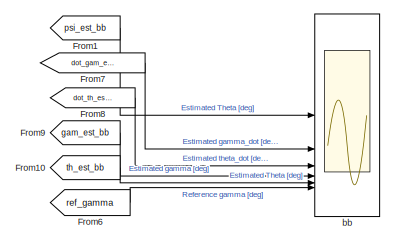
[diagram: root canvas - part 1/2, top center region]
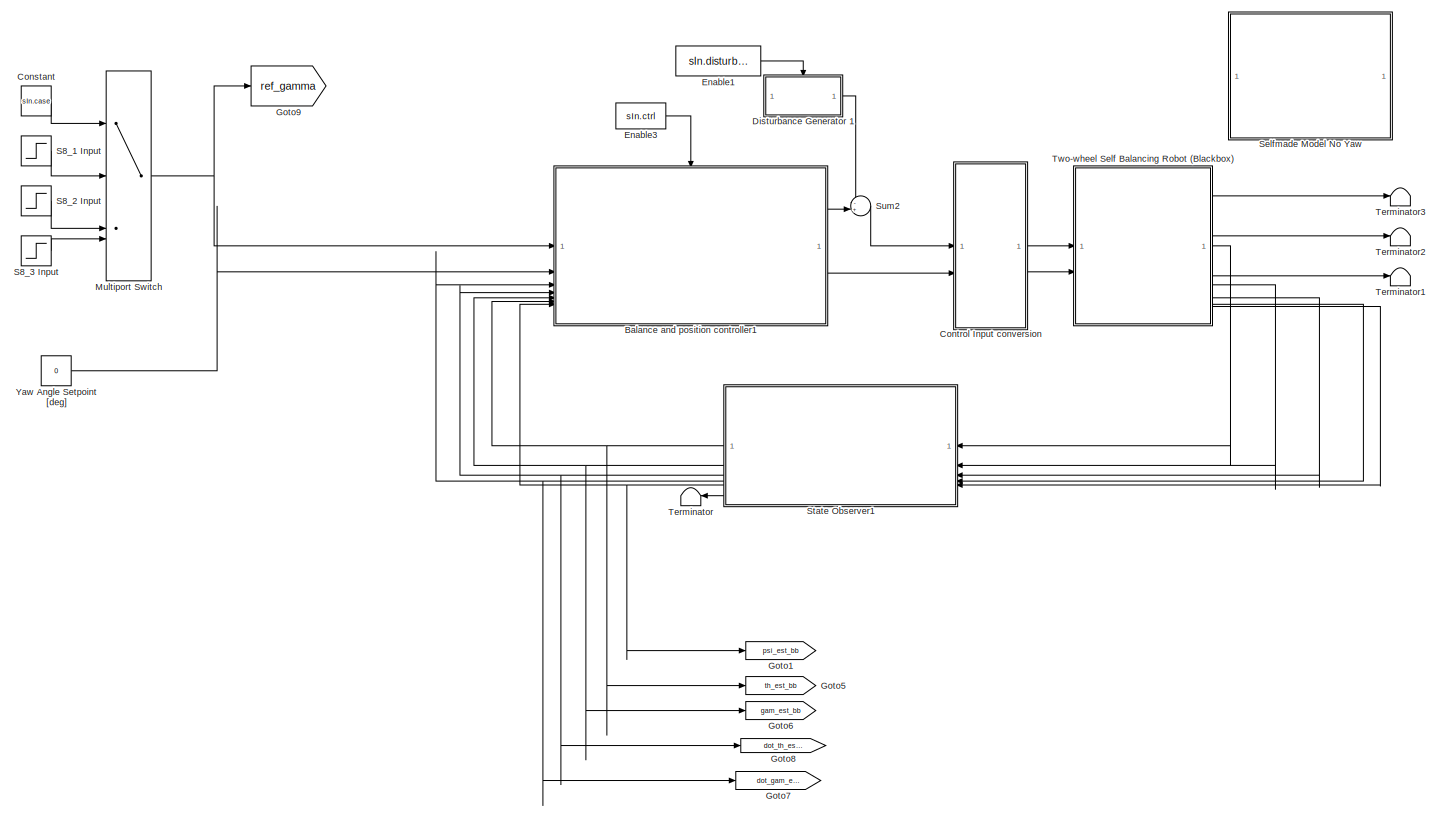
[diagram: root canvas - part 2/2, full width, middle band]
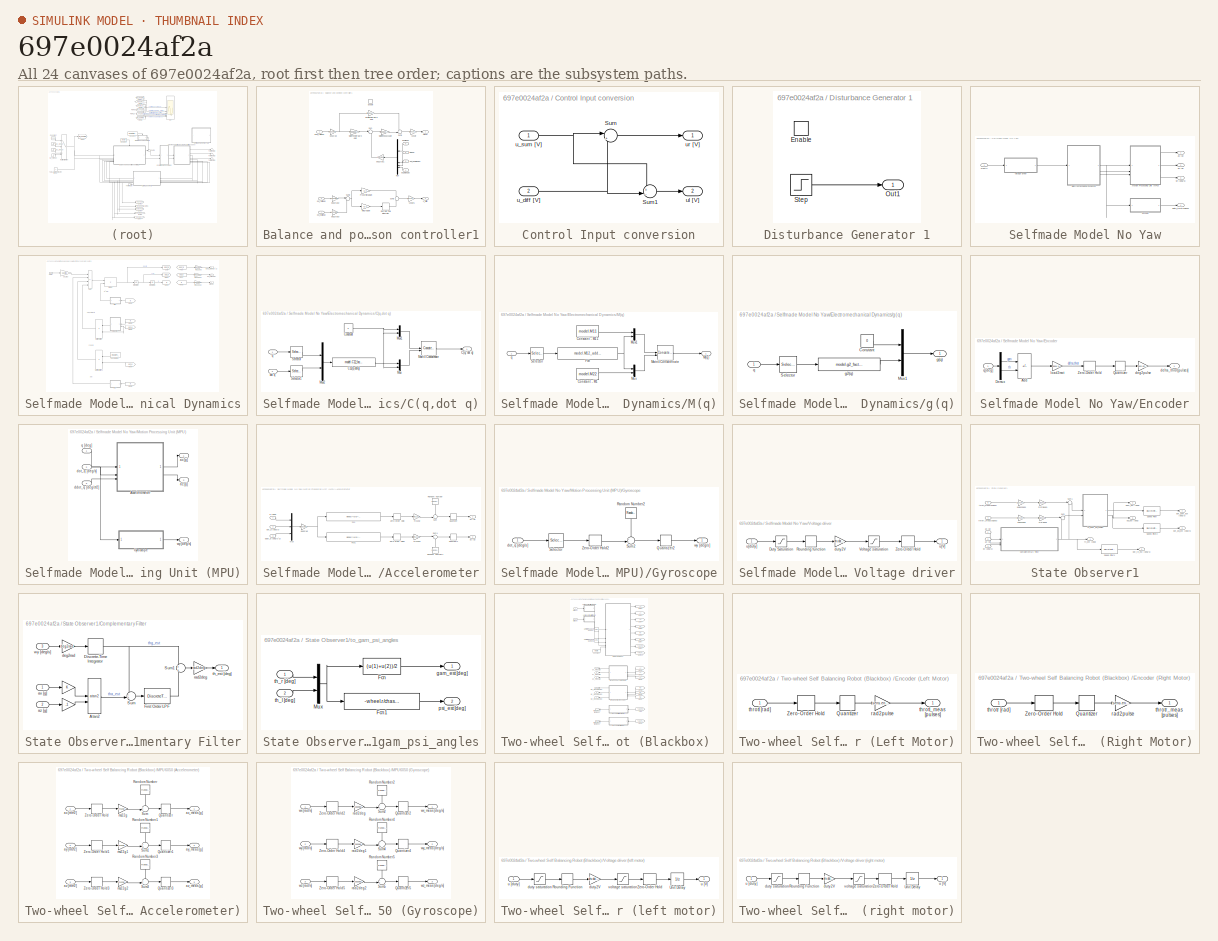
[diagram: thumbnail index - all 24 canvases of the model, root first then tree order]
MODEL slx_697e0024af2a
KIND model
CONFIG AbsTol = auto
CONFIG EnableMultiTasking = off
CONFIG FixedStep = auto
CONFIG MaxStep = auto
CONFIG MinStep = auto
CONFIG RelTol = 1e-3
CONFIG SampleTimeConstraint = Unconstrained
CONFIG SolverName = ode23
CONFIG StartTime = 0.0
CONFIG StopTime = sIn.simulation_time
BLOCK [SubSystem] Balance and position controller1
BLOCK [DiscreteIntegrator] Balance and position controller1/Discrete-Time Integrator
  ICPrevOutput = DiscIntNeverNeededParam
  ICPrevScaledInput = DiscIntNeverNeededParam
  InitialConditionSetting = Auto
  SampleTime = -1
BLOCK [EnablePort] Balance and position controller1/Enable
BLOCK [Gain] Balance and position controller1/Input feedforward gain
  Gain = feedback.Nu
BLOCK [Gain] Balance and position controller1/Integral Gain
  Gain = 0.7
BLOCK [Mux] Balance and position controller1/Mux
  DisplayOption = bar
  NameLocation = top
BLOCK [Gain] Balance and position controller1/Proportional Gain
  Gain = 3.3
BLOCK [Gain] Balance and position controller1/State Feedforward gain
  Gain = feedback.Nx
BLOCK [Gain] Balance and position controller1/State feedback gain
  Gain = feedback.K1
  Multiplication = Matrix(K*u)
BLOCK [Sum] Balance and position controller1/Sum
  Inputs = |+-
BLOCK [Sum] Balance and position controller1/Sum1
  Inputs = ++|
BLOCK [Sum] Balance and position controller1/Sum2
  Inputs = |+-
BLOCK [Sum] Balance and position controller1/Sum3
  Inputs = +|+
BLOCK [Gain] Balance and position controller1/V2duty
  Gain = drv.V2duty
BLOCK [Gain] Balance and position controller1/V2duty1
  Gain = drv.V2duty
BLOCK [Gain] Balance and position controller1/deg2rad
  Gain = deg2rad
BLOCK [Gain] Balance and position controller1/deg2rad1
  Gain = deg2rad
  NameLocation = top
BLOCK [Gain] Balance and position controller1/deg2rad2
  Gain = deg2rad
BLOCK [Gain] Balance and position controller1/deg2rad3
  Gain = deg2rad
BLOCK [Inport] Balance and position controller1/dot_gam [deg//s]
  Port = 3
BLOCK [Inport] Balance and position controller1/dot_th [deg//s]
  Port = 4
BLOCK [Inport] Balance and position controller1/gam [deg]
  Port = 5
BLOCK [Inport] Balance and position controller1/gam_ref [deg]
BLOCK [Inport] Balance and position controller1/psi_est [deg]
  Port = 7
BLOCK [Inport] Balance and position controller1/psi_ref [deg]
  Port = 2
BLOCK [Inport] Balance and position controller1/th [deg]
  Port = 6
BLOCK [Outport] Balance and position controller1/u [duty]
  InitialOutput = 0
  OutputWhenDisabled = reset
BLOCK [Outport] Balance and position controller1/u_diff [V]
  InitialOutput = 0
  OutputWhenDisabled = reset
  Port = 2
BLOCK [Constant] Constant
  Value = sIn.case
BLOCK [SubSystem] Control Input conversion
BLOCK [Sum] Control Input conversion/Sum
  Inputs = |++
BLOCK [Sum] Control Input conversion/Sum1
  Inputs = +-|
BLOCK [Inport] Control Input conversion/u_diff [V]
  Port = 2
BLOCK [Inport] Control Input conversion/u_sum [V]
BLOCK [Outport] Control Input conversion/ul [V]
  Port = 2
BLOCK [Outport] Control Input conversion/ur [V]
BLOCK [SubSystem] Disturbance Generator 1
  TreatAsAtomicUnit = on
BLOCK [EnablePort] Disturbance Generator 1/Enable
BLOCK [Outport] Disturbance Generator 1/Out1
  InitialOutput = 0
  OutputWhenDisabled = reset
BLOCK [Step] Disturbance Generator 1/Step
  After = 5/drv.duty2V
  SampleTime = 0
  Time = 10
BLOCK [Constant] Enable1
  Value = sIn.disturbance
BLOCK [Constant] Enable3
  Value = sIn.ctrl
BLOCK [From] From1
  GotoTag = psi_est_bb
BLOCK [From] From10
  GotoTag = th_est_bb
BLOCK [From] From6
  GotoTag = ref_gamma
BLOCK [From] From7
  GotoTag = dot_gam_est_bb
BLOCK [From] From8
  GotoTag = dot_th_est_bb
BLOCK [From] From9
  GotoTag = gam_est_bb
BLOCK [Goto] Goto1
  GotoTag = psi_est_bb
BLOCK [Goto] Goto5
  GotoTag = th_est_bb
BLOCK [Goto] Goto6
  GotoTag = gam_est_bb
BLOCK [Goto] Goto7
  GotoTag = dot_gam_est_bb
BLOCK [Goto] Goto8
  GotoTag = dot_th_est_bb
BLOCK [Goto] Goto9
  GotoTag = ref_gamma
BLOCK [MultiPortSwitch] Multiport Switch
  InputSameDT = off
  SaturateOnIntegerOverflow = off
BLOCK [Step] S8_1 Input
  After = 0
  SampleTime = 0
  Time = 0
BLOCK [Step] S8_2 Input
  After = (0.1/wheel.r) *rad2deg
  SampleTime = 0
  Time = 0
BLOCK [Step] S8_3 Input
  After = (0.1/wheel.r) *rad2deg
  SampleTime = 0
  Time = 0
BLOCK [SubSystem] Selfmade Model No Yaw
  Commented = on
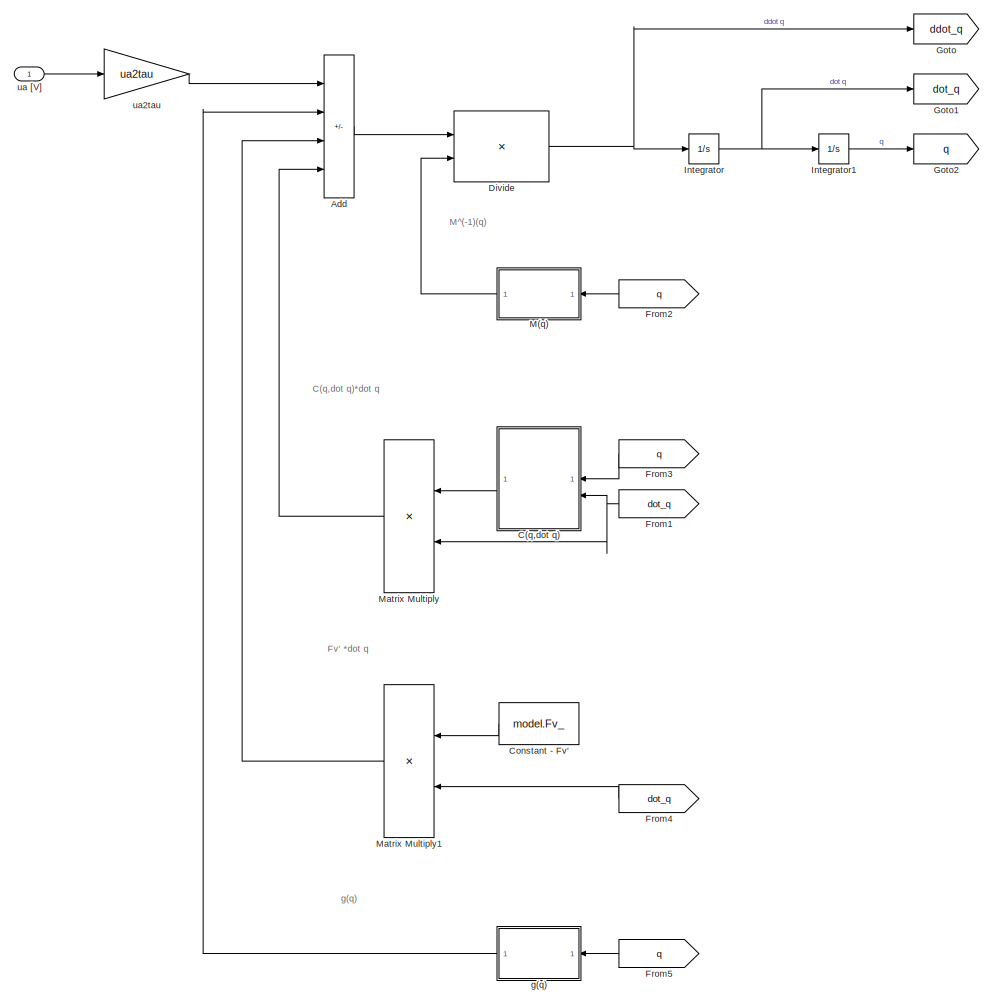
[diagram: Selfmade Model No Yaw/Electromechanical Dynamics - part 1/2, most of the canvas]
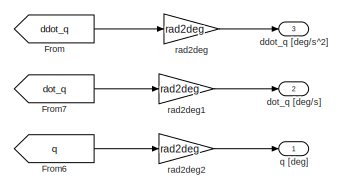
[diagram: Selfmade Model No Yaw/Electromechanical Dynamics - part 2/2, top right region]
BLOCK [SubSystem] Selfmade Model No Yaw/Electromechanical Dynamics
BLOCK [Sum] Selfmade Model No Yaw/Electromechanical Dynamics/Add
  IconShape = rectangular
  Inputs = +---
BLOCK [SubSystem] Selfmade Model No Yaw/Electromechanical Dynamics/C(q,dot q)
BLOCK [Outport] Selfmade Model No Yaw/Electromechanical Dynamics/C(q,dot q)/C(q, dot q)
BLOCK [Fcn] Selfmade Model No Yaw/Electromechanical Dynamics/C(q,dot q)/C12(q dotq)
  Expr = model.C12_fact*sin(u(1))*u(2)
BLOCK [Constant] Selfmade Model No Yaw/Electromechanical Dynamics/C(q,dot q)/Constant
  Value = 0
BLOCK [Concatenate] Selfmade Model No Yaw/Electromechanical Dynamics/C(q,dot q)/Matrix Concatenate
  ConcatenateDimension = 2
  Mode = Multidimensional array
BLOCK [Mux] Selfmade Model No Yaw/Electromechanical Dynamics/C(q,dot q)/Mux
  DisplayOption = bar
  Inputs = 2
BLOCK [Mux] Selfmade Model No Yaw/Electromechanical Dynamics/C(q,dot q)/Mux1
  DisplayOption = bar
  Inputs = 2
BLOCK [Mux] Selfmade Model No Yaw/Electromechanical Dynamics/C(q,dot q)/Mux2
  DisplayOption = bar
  Inputs = 2
BLOCK [Selector] Selfmade Model No Yaw/Electromechanical Dynamics/C(q,dot q)/Selector
  IndexOptions = Index vector (dialog)
  Indices = 2
  InputPortWidth = 2
  OutputSizes = 1
BLOCK [Selector] Selfmade Model No Yaw/Electromechanical Dynamics/C(q,dot q)/Selector1
  IndexOptions = Index vector (dialog)
  Indices = 2
  InputPortWidth = 2
  OutputSizes = 1
BLOCK [Inport] Selfmade Model No Yaw/Electromechanical Dynamics/C(q,dot q)/dot q
  Port = 2
BLOCK [Inport] Selfmade Model No Yaw/Electromechanical Dynamics/C(q,dot q)/q
BLOCK [Constant] Selfmade Model No Yaw/Electromechanical Dynamics/Constant - Fv'
  Value = model.Fv_
BLOCK [Product] Selfmade Model No Yaw/Electromechanical Dynamics/Divide
  Inputs = */
  Multiplication = Matrix(*)
BLOCK [From] Selfmade Model No Yaw/Electromechanical Dynamics/From
  GotoTag = ddot_q
BLOCK [From] Selfmade Model No Yaw/Electromechanical Dynamics/From1
  GotoTag = dot_q
BLOCK [From] Selfmade Model No Yaw/Electromechanical Dynamics/From2
  GotoTag = q
BLOCK [From] Selfmade Model No Yaw/Electromechanical Dynamics/From3
  GotoTag = q
BLOCK [From] Selfmade Model No Yaw/Electromechanical Dynamics/From4
  GotoTag = dot_q
BLOCK [From] Selfmade Model No Yaw/Electromechanical Dynamics/From5
  GotoTag = q
BLOCK [From] Selfmade Model No Yaw/Electromechanical Dynamics/From6
  GotoTag = q
BLOCK [From] Selfmade Model No Yaw/Electromechanical Dynamics/From7
  GotoTag = dot_q
BLOCK [Goto] Selfmade Model No Yaw/Electromechanical Dynamics/Goto
  GotoTag = ddot_q
BLOCK [Goto] Selfmade Model No Yaw/Electromechanical Dynamics/Goto1
  GotoTag = dot_q
BLOCK [Goto] Selfmade Model No Yaw/Electromechanical Dynamics/Goto2
  GotoTag = q
BLOCK [Integrator] Selfmade Model No Yaw/Electromechanical Dynamics/Integrator
  InitialCondition = x0(1:2)
BLOCK [Integrator] Selfmade Model No Yaw/Electromechanical Dynamics/Integrator1
  InitialCondition = x0(3:4)
BLOCK [SubSystem] Selfmade Model No Yaw/Electromechanical Dynamics/M(q)
BLOCK [Constant] Selfmade Model No Yaw/Electromechanical Dynamics/M(q)/Constant - M1
  Value = model.M22
BLOCK [Constant] Selfmade Model No Yaw/Electromechanical Dynamics/M(q)/Constant - M11
  Value = model.M11
BLOCK [Fcn] Selfmade Model No Yaw/Electromechanical Dynamics/M(q)/Fcn
  Expr = model.M12_add + model.M12_fact*cos(u)
BLOCK [Outport] Selfmade Model No Yaw/Electromechanical Dynamics/M(q)/M(q)
BLOCK [Concatenate] Selfmade Model No Yaw/Electromechanical Dynamics/M(q)/Matrix Concatenate
  ConcatenateDimension = 2
  Mode = Multidimensional array
BLOCK [Mux] Selfmade Model No Yaw/Electromechanical Dynamics/M(q)/Mux
  DisplayOption = bar
  Inputs = 2
BLOCK [Mux] Selfmade Model No Yaw/Electromechanical Dynamics/M(q)/Mux1
  DisplayOption = bar
  Inputs = 2
BLOCK [Selector] Selfmade Model No Yaw/Electromechanical Dynamics/M(q)/Selector
  IndexOptions = Index vector (dialog)
  Indices = 2
  InputPortWidth = 2
  OutputSizes = 1
BLOCK [Inport] Selfmade Model No Yaw/Electromechanical Dynamics/M(q)/q
BLOCK [Product] Selfmade Model No Yaw/Electromechanical Dynamics/Matrix Multiply
  Multiplication = Matrix(*)
BLOCK [Product] Selfmade Model No Yaw/Electromechanical Dynamics/Matrix Multiply1
  Multiplication = Matrix(*)
BLOCK [Outport] Selfmade Model No Yaw/Electromechanical Dynamics/ddot_q [deg//s^2]
  Port = 3
BLOCK [Outport] Selfmade Model No Yaw/Electromechanical Dynamics/dot_q [deg//s]
  Port = 2
BLOCK [SubSystem] Selfmade Model No Yaw/Electromechanical Dynamics/g(q)
BLOCK [Constant] Selfmade Model No Yaw/Electromechanical Dynamics/g(q)/Constant
  Value = 0
BLOCK [Mux] Selfmade Model No Yaw/Electromechanical Dynamics/g(q)/Mux1
  DisplayOption = bar
  Inputs = 2
BLOCK [Selector] Selfmade Model No Yaw/Electromechanical Dynamics/g(q)/Selector
  IndexOptions = Index vector (dialog)
  Indices = 2
  InputPortWidth = 2
  OutputSizes = 1
BLOCK [Outport] Selfmade Model No Yaw/Electromechanical Dynamics/g(q)/g(q)
BLOCK [Fcn] Selfmade Model No Yaw/Electromechanical Dynamics/g(q)/g2(q)
  Expr = model.g2_fact*sin(u)
BLOCK [Inport] Selfmade Model No Yaw/Electromechanical Dynamics/g(q)/q
BLOCK [Outport] Selfmade Model No Yaw/Electromechanical Dynamics/q [deg]
BLOCK [Gain] Selfmade Model No Yaw/Electromechanical Dynamics/rad2deg
  Gain = rad2deg
BLOCK [Gain] Selfmade Model No Yaw/Electromechanical Dynamics/rad2deg1
  Gain = rad2deg
BLOCK [Gain] Selfmade Model No Yaw/Electromechanical Dynamics/rad2deg2
  Gain = rad2deg
BLOCK [Inport] Selfmade Model No Yaw/Electromechanical Dynamics/ua [V]
BLOCK [Gain] Selfmade Model No Yaw/Electromechanical Dynamics/ua2tau
  Gain = ua2tau
BLOCK [SubSystem] Selfmade Model No Yaw/Encoder
BLOCK [Sum] Selfmade Model No Yaw/Encoder/Add
  IconShape = rectangular
  Inputs = +-
BLOCK [Demux] Selfmade Model No Yaw/Encoder/Demux
  Outputs = 2
BLOCK [Quantizer] Selfmade Model No Yaw/Encoder/Quantizer
  QuantizationInterval = sens.enc.pulse2deg
BLOCK [ZeroOrderHold] Selfmade Model No Yaw/Encoder/Zero-Order Hold
  SampleTime = Ts
BLOCK [Gain] Selfmade Model No Yaw/Encoder/deg2pulse
  Gain = sens.enc.deg2pulse
BLOCK [Outport] Selfmade Model No Yaw/Encoder/delta_throt[pulses]
BLOCK [Gain] Selfmade Model No Yaw/Encoder/load2mot
  Gain = gbox.N
BLOCK [Inport] Selfmade Model No Yaw/Encoder/q[deg]
BLOCK [SubSystem] Selfmade Model No Yaw/Motion Processing Unit (MPU)
BLOCK [SubSystem] Selfmade Model No Yaw/Motion Processing Unit (MPU)/Accelerometer
BLOCK [Fcn] Selfmade Model No Yaw/Motion Processing Unit (MPU)/Accelerometer/Fcn
  Expr = wheel.r*u(5)*cos(u(2)) + sens.mpu.zb*u(6) + g*sin(u(2))
BLOCK [Fcn] Selfmade Model No Yaw/Motion Processing Unit (MPU)/Accelerometer/Fcn1
  Expr = wheel.r*u(5)*sin(u(2)) - sens.mpu.zb*u(4)^2 - g*cos(u(2))
BLOCK [Mux] Selfmade Model No Yaw/Motion Processing Unit (MPU)/Accelerometer/Mux
  DisplayOption = bar
  Inputs = 3
BLOCK [Quantizer] Selfmade Model No Yaw/Motion Processing Unit (MPU)/Accelerometer/Quantizer
  QuantizationInterval = sens.mpu.acc.LSB2g
BLOCK [Quantizer] Selfmade Model No Yaw/Motion Processing Unit (MPU)/Accelerometer/Quantizer1
  QuantizationInterval = sens.mpu.acc.LSB2g
BLOCK [RandomNumber] Selfmade Model No Yaw/Motion Processing Unit (MPU)/Accelerometer/Random Number
  NameLocation = left
  SampleTime = Ts
  Variance = sens.mpu.acc.noisevar
BLOCK [RandomNumber] Selfmade Model No Yaw/Motion Processing Unit (MPU)/Accelerometer/Random Number1
  NameLocation = right
  SampleTime = Ts
  Variance = sens.mpu.acc.noisevar
BLOCK [Sum] Selfmade Model No Yaw/Motion Processing Unit (MPU)/Accelerometer/Sum
  Inputs = ++|
BLOCK [Sum] Selfmade Model No Yaw/Motion Processing Unit (MPU)/Accelerometer/Sum1
  Inputs = |++
BLOCK [ZeroOrderHold] Selfmade Model No Yaw/Motion Processing Unit (MPU)/Accelerometer/Zero-Order Hold
  SampleTime = Ts
BLOCK [ZeroOrderHold] Selfmade Model No Yaw/Motion Processing Unit (MPU)/Accelerometer/Zero-Order Hold1
  SampleTime = Ts
BLOCK [Outport] Selfmade Model No Yaw/Motion Processing Unit (MPU)/Accelerometer/ax [g]
BLOCK [Outport] Selfmade Model No Yaw/Motion Processing Unit (MPU)/Accelerometer/az [g]
  Port = 2
BLOCK [Inport] Selfmade Model No Yaw/Motion Processing Unit (MPU)/Accelerometer/ddot_q [deg//s^2]
  Port = 3
BLOCK [Gain] Selfmade Model No Yaw/Motion Processing Unit (MPU)/Accelerometer/deg2rad
  Gain = deg2rad
BLOCK [Inport] Selfmade Model No Yaw/Motion Processing Unit (MPU)/Accelerometer/dot_q [deg//s]
  Port = 2
BLOCK [Gain] Selfmade Model No Yaw/Motion Processing Unit (MPU)/Accelerometer/ms22g
  Gain = ms22g
BLOCK [Gain] Selfmade Model No Yaw/Motion Processing Unit (MPU)/Accelerometer/ms22g1
  Gain = ms22g
BLOCK [Inport] Selfmade Model No Yaw/Motion Processing Unit (MPU)/Accelerometer/q [deg]
BLOCK [SubSystem] Selfmade Model No Yaw/Motion Processing Unit (MPU)/Gyroscope
BLOCK [Quantizer] Selfmade Model No Yaw/Motion Processing Unit (MPU)/Gyroscope/Quantizer2
  QuantizationInterval = sens.mpu.gyro.LSB2degs
BLOCK [RandomNumber] Selfmade Model No Yaw/Motion Processing Unit (MPU)/Gyroscope/Random Number2
  NameLocation = left
  SampleTime = Ts
  Variance = sens.mpu.gyro.noisevar
BLOCK [Selector] Selfmade Model No Yaw/Motion Processing Unit (MPU)/Gyroscope/Selector
  IndexOptions = Index vector (dialog)
  Indices = 2
  InputPortWidth = 2
  OutputSizes = 1
BLOCK [Sum] Selfmade Model No Yaw/Motion Processing Unit (MPU)/Gyroscope/Sum2
  Inputs = ++|
BLOCK [ZeroOrderHold] Selfmade Model No Yaw/Motion Processing Unit (MPU)/Gyroscope/Zero-Order Hold2
  SampleTime = Ts
BLOCK [Inport] Selfmade Model No Yaw/Motion Processing Unit (MPU)/Gyroscope/dot_q [deg//s]
BLOCK [Outport] Selfmade Model No Yaw/Motion Processing Unit (MPU)/Gyroscope/wy [deg//s]
BLOCK [Outport] Selfmade Model No Yaw/Motion Processing Unit (MPU)/ax [g]
BLOCK [Outport] Selfmade Model No Yaw/Motion Processing Unit (MPU)/az [g]
  Port = 2
BLOCK [Inport] Selfmade Model No Yaw/Motion Processing Unit (MPU)/ddot_q [deg//s^2]
  Port = 3
BLOCK [Inport] Selfmade Model No Yaw/Motion Processing Unit (MPU)/dot_q [deg//s]
  Port = 2
BLOCK [Inport] Selfmade Model No Yaw/Motion Processing Unit (MPU)/q [deg]
BLOCK [Outport] Selfmade Model No Yaw/Motion Processing Unit (MPU)/wy [deg//s]
  Port = 3
BLOCK [SubSystem] Selfmade Model No Yaw/Voltage driver
BLOCK [Saturate] Selfmade Model No Yaw/Voltage driver/Duty Saturation
  LowerLimit = -drv.dutymax
  UpperLimit = drv.dutymax
BLOCK [Rounding] Selfmade Model No Yaw/Voltage driver/Rounding function
  Operator = fix
BLOCK [Saturate] Selfmade Model No Yaw/Voltage driver/Voltage saturation
  LowerLimit = -drv.Vbus
  UpperLimit = drv.Vbus
BLOCK [ZeroOrderHold] Selfmade Model No Yaw/Voltage driver/Zero-Order Hold
  SampleTime = Ts
BLOCK [Gain] Selfmade Model No Yaw/Voltage driver/duty2V
  Gain = drv.duty2V
BLOCK [Outport] Selfmade Model No Yaw/Voltage driver/u[V]
BLOCK [Inport] Selfmade Model No Yaw/Voltage driver/u[duty]
BLOCK [Outport] Selfmade Model No Yaw/ax [g]
BLOCK [Outport] Selfmade Model No Yaw/az [g]
  Port = 2
BLOCK [Outport] Selfmade Model No Yaw/delta_throt[pulses]
  Port = 4
BLOCK [Inport] Selfmade Model No Yaw/u[duty]
BLOCK [Outport] Selfmade Model No Yaw/wy [deg//s]
  Port = 3
BLOCK [SubSystem] State Observer1
BLOCK [SubSystem] State Observer1/Complementary Filter
BLOCK [Gain] State Observer1/Complementary Filter/ 
BLOCK [Gain] State Observer1/Complementary Filter/   
  Gain = -1
BLOCK [Trigonometry] State Observer1/Complementary Filter/Atan2
  Operator = atan2
BLOCK [DiscreteIntegrator] State Observer1/Complementary Filter/Discrete-Time Integrator
  ICPrevOutput = DiscIntNeverNeededParam
  ICPrevScaledInput = DiscIntNeverNeededParam
  InitialCondition = sIn.x0(2)
  InitialConditionSetting = Auto
  SampleTime = sIn.Ts
BLOCK [DiscreteTransferFcn] State Observer1/Complementary Filter/First Order LPF
  Denominator = [filter.low.firstorderDT.Denominator{1,1}]
  InputPortMap = u0
  Numerator = [filter.low.firstorderDT.Numerator{1,1}]
BLOCK [Sum] State Observer1/Complementary Filter/Sum
  Inputs = -+|
BLOCK [Sum] State Observer1/Complementary Filter/Sum1
  Inputs = +|+
BLOCK [Inport] State Observer1/Complementary Filter/ax [g]
BLOCK [Inport] State Observer1/Complementary Filter/az [g]
  Port = 2
BLOCK [Gain] State Observer1/Complementary Filter/deg2rad
  Gain = deg2rad
BLOCK [Gain] State Observer1/Complementary Filter/rad2deg
  Gain = rad2deg
BLOCK [Outport] State Observer1/Complementary Filter/th_est [deg]
BLOCK [Inport] State Observer1/Complementary Filter/wy [deg//s]
  Port = 3
BLOCK [DiscreteFilter] State Observer1/Speed Filter
  Denominator = filter.high.Denominator{1,1}
  InputPortMap = u0
  Numerator = filter.high.Numerator{1,1}
BLOCK [DiscreteFilter] State Observer1/Speed Filter1
  Denominator = filter.high.Denominator{1,1}
  InputPortMap = u0
  Numerator = filter.high.Numerator{1,1}
BLOCK [DiscreteFilter] State Observer1/Speed Filter2
  Denominator = filter.high.Denominator{1,1}
  InputPortMap = u0
  Numerator = filter.high.Numerator{1,1}
BLOCK [Sum] State Observer1/Sum
  Inputs = |++
BLOCK [Sum] State Observer1/Sum1
  Inputs = |++
BLOCK [Inport] State Observer1/ax [g]
BLOCK [Inport] State Observer1/az [g]
  Port = 2
BLOCK [Outport] State Observer1/dot_gam_est [deg//s]
  Port = 4
BLOCK [Outport] State Observer1/dot_psi_est [deg//s]
  Port = 6
BLOCK [Outport] State Observer1/dot_th_est [deg//s]
  Port = 3
BLOCK [Outport] State Observer1/gam_est [deg]
  Port = 2
BLOCK [Gain] State Observer1/mot2load
  Gain = 1/gbox.N
BLOCK [Gain] State Observer1/mot2load1
  Gain = 1/gbox.N
BLOCK [Outport] State Observer1/psi_est [deg]
  Port = 5
BLOCK [Gain] State Observer1/pulse2deg
  Gain = sens.enc.pulse2deg
BLOCK [Gain] State Observer1/pulse2deg1
  Gain = sens.enc.pulse2deg
BLOCK [Outport] State Observer1/th_est [deg]
BLOCK [Inport] State Observer1/throtl_meas[pulses]
  Port = 5
BLOCK [Inport] State Observer1/throtr_meas[pulses]
  Port = 4
BLOCK [SubSystem] State Observer1/to_gam_psi_angles
BLOCK [Fcn] State Observer1/to_gam_psi_angles/Fcn
  Expr = (u(1)+u(2))/2
BLOCK [Fcn] State Observer1/to_gam_psi_angles/Fcn1
  Expr = -wheel.r/chassis.w*(u(1)-u(2))
BLOCK [Mux] State Observer1/to_gam_psi_angles/Mux
  DisplayOption = bar
  Inputs = 2
BLOCK [Outport] State Observer1/to_gam_psi_angles/gam_est [deg]
BLOCK [Outport] State Observer1/to_gam_psi_angles/psi_est [deg]
  Port = 2
BLOCK [Inport] State Observer1/to_gam_psi_angles/th_l [deg]
  Port = 2
BLOCK [Inport] State Observer1/to_gam_psi_angles/th_r [deg]
BLOCK [Inport] State Observer1/wy [deg//s]
  Port = 3
BLOCK [Sum] Sum2
  Inputs = -+|
BLOCK [Terminator] Terminator
BLOCK [Terminator] Terminator1
BLOCK [Terminator] Terminator2
BLOCK [Terminator] Terminator3
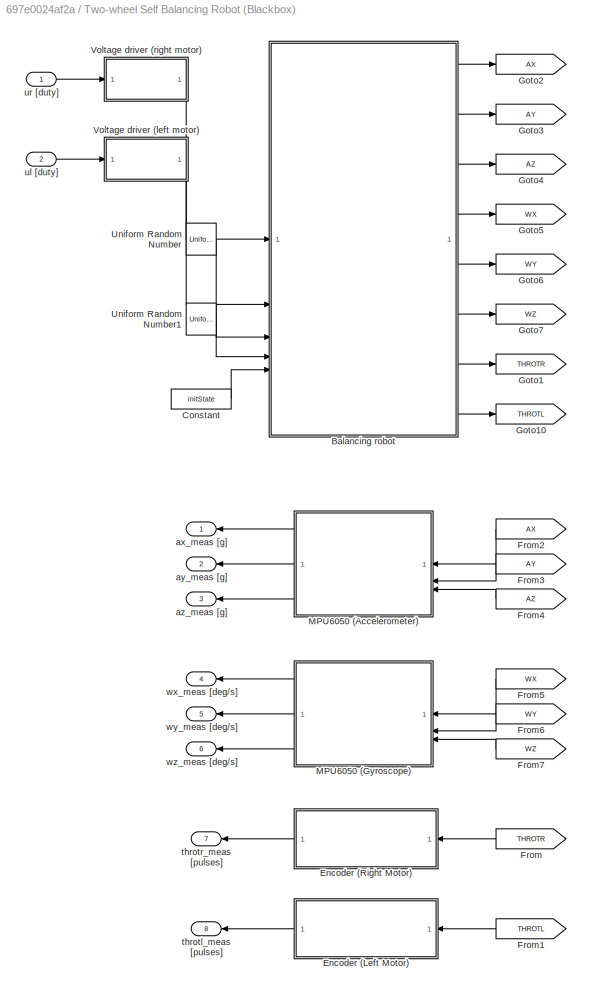
BLOCK [SubSystem] Two-wheel Self Balancing Robot (Blackbox) 
BLOCK [ModelReference] Two-wheel Self Balancing Robot (Blackbox) /Balancing robot
  CopyOfModelProtected = on
  ModelNameDialog = balrob3d_win64.slxp
  ModelReferenceVersion = 1.741
BLOCK [Constant] Two-wheel Self Balancing Robot (Blackbox) /Constant
  Value = initState
BLOCK [SubSystem] Two-wheel Self Balancing Robot (Blackbox) /Encoder (Left Motor)
BLOCK [Quantizer] Two-wheel Self Balancing Robot (Blackbox) /Encoder (Left Motor)/Quantizer
  QuantizationInterval = sens.enc.pulse2rad
BLOCK [ZeroOrderHold] Two-wheel Self Balancing Robot (Blackbox) /Encoder (Left Motor)/Zero-Order Hold
  SampleTime = Ts
BLOCK [Gain] Two-wheel Self Balancing Robot (Blackbox) /Encoder (Left Motor)/rad2pulse
  Gain = sens.enc.rad2pulse
BLOCK [Inport] Two-wheel Self Balancing Robot (Blackbox) /Encoder (Left Motor)/throtl [rad]
BLOCK [Outport] Two-wheel Self Balancing Robot (Blackbox) /Encoder (Left Motor)/throtl_meas [pulses]
BLOCK [SubSystem] Two-wheel Self Balancing Robot (Blackbox) /Encoder (Right Motor)
BLOCK [Quantizer] Two-wheel Self Balancing Robot (Blackbox) /Encoder (Right Motor)/Quantizer
  QuantizationInterval = sens.enc.pulse2rad
BLOCK [ZeroOrderHold] Two-wheel Self Balancing Robot (Blackbox) /Encoder (Right Motor)/Zero-Order Hold
  SampleTime = Ts
BLOCK [Gain] Two-wheel Self Balancing Robot (Blackbox) /Encoder (Right Motor)/rad2pulse
  Gain = sens.enc.rad2pulse
BLOCK [Inport] Two-wheel Self Balancing Robot (Blackbox) /Encoder (Right Motor)/throtr [rad]
BLOCK [Outport] Two-wheel Self Balancing Robot (Blackbox) /Encoder (Right Motor)/throtr_meas [pulses]
BLOCK [From] Two-wheel Self Balancing Robot (Blackbox) /From
  GotoTag = THROTR
  NameLocation = top
BLOCK [From] Two-wheel Self Balancing Robot (Blackbox) /From1
  GotoTag = THROTL
  NameLocation = top
BLOCK [From] Two-wheel Self Balancing Robot (Blackbox) /From2
  GotoTag = AX
  NameLocation = top
BLOCK [From] Two-wheel Self Balancing Robot (Blackbox) /From3
  GotoTag = AY
  NameLocation = top
BLOCK [From] Two-wheel Self Balancing Robot (Blackbox) /From4
  GotoTag = AZ
  NameLocation = top
BLOCK [From] Two-wheel Self Balancing Robot (Blackbox) /From5
  GotoTag = WX
  NameLocation = top
BLOCK [From] Two-wheel Self Balancing Robot (Blackbox) /From6
  GotoTag = WY
  NameLocation = top
BLOCK [From] Two-wheel Self Balancing Robot (Blackbox) /From7
  GotoTag = WZ
  NameLocation = top
BLOCK [Goto] Two-wheel Self Balancing Robot (Blackbox) /Goto1
  GotoTag = THROTR
BLOCK [Goto] Two-wheel Self Balancing Robot (Blackbox) /Goto10
  GotoTag = THROTL
BLOCK [Goto] Two-wheel Self Balancing Robot (Blackbox) /Goto2
  GotoTag = AX
BLOCK [Goto] Two-wheel Self Balancing Robot (Blackbox) /Goto3
  GotoTag = AY
BLOCK [Goto] Two-wheel Self Balancing Robot (Blackbox) /Goto4
  GotoTag = AZ
BLOCK [Goto] Two-wheel Self Balancing Robot (Blackbox) /Goto5
  GotoTag = WX
BLOCK [Goto] Two-wheel Self Balancing Robot (Blackbox) /Goto6
  GotoTag = WY
BLOCK [Goto] Two-wheel Self Balancing Robot (Blackbox) /Goto7
  GotoTag = WZ
BLOCK [SubSystem] Two-wheel Self Balancing Robot (Blackbox) /MPU6050 (Accelerometer)
BLOCK [Quantizer] Two-wheel Self Balancing Robot (Blackbox) /MPU6050 (Accelerometer)/Quantizer
  QuantizationInterval = sens.mpu.acc.LSB2g
BLOCK [Quantizer] Two-wheel Self Balancing Robot (Blackbox) /MPU6050 (Accelerometer)/Quantizer1
  QuantizationInterval = sens.mpu.acc.LSB2g
BLOCK [Quantizer] Two-wheel Self Balancing Robot (Blackbox) /MPU6050 (Accelerometer)/Quantizer3
  QuantizationInterval = sens.mpu.acc.LSB2g
BLOCK [RandomNumber] Two-wheel Self Balancing Robot (Blackbox) /MPU6050 (Accelerometer)/Random Number
  NameLocation = left
  SampleTime = Ts
  Seed = 1
  Variance = sens.mpu.acc.noisevar
BLOCK [RandomNumber] Two-wheel Self Balancing Robot (Blackbox) /MPU6050 (Accelerometer)/Random Number1
  NameLocation = left
  SampleTime = Ts
  Seed = 10
  Variance = sens.mpu.acc.noisevar
BLOCK [RandomNumber] Two-wheel Self Balancing Robot (Blackbox) /MPU6050 (Accelerometer)/Random Number3
  NameLocation = left
  SampleTime = Ts
  Seed = 100
  Variance = sens.mpu.acc.noisevar
BLOCK [Sum] Two-wheel Self Balancing Robot (Blackbox) /MPU6050 (Accelerometer)/Sum
  Inputs = ++|
BLOCK [Sum] Two-wheel Self Balancing Robot (Blackbox) /MPU6050 (Accelerometer)/Sum1
  Inputs = ++|
BLOCK [Sum] Two-wheel Self Balancing Robot (Blackbox) /MPU6050 (Accelerometer)/Sum3
  Inputs = ++|
BLOCK [ZeroOrderHold] Two-wheel Self Balancing Robot (Blackbox) /MPU6050 (Accelerometer)/Zero-Order Hold
  SampleTime = Ts
BLOCK [ZeroOrderHold] Two-wheel Self Balancing Robot (Blackbox) /MPU6050 (Accelerometer)/Zero-Order Hold1
  SampleTime = Ts
BLOCK [ZeroOrderHold] Two-wheel Self Balancing Robot (Blackbox) /MPU6050 (Accelerometer)/Zero-Order Hold3
  SampleTime = Ts
BLOCK [Inport] Two-wheel Self Balancing Robot (Blackbox) /MPU6050 (Accelerometer)/ax [m//s^2]
BLOCK [Outport] Two-wheel Self Balancing Robot (Blackbox) /MPU6050 (Accelerometer)/ax_meas [g]
BLOCK [Inport] Two-wheel Self Balancing Robot (Blackbox) /MPU6050 (Accelerometer)/ay [m//s^2]
  Port = 2
BLOCK [Outport] Two-wheel Self Balancing Robot (Blackbox) /MPU6050 (Accelerometer)/ay_meas [g]
  Port = 2
BLOCK [Inport] Two-wheel Self Balancing Robot (Blackbox) /MPU6050 (Accelerometer)/az [m//s^2]
  Port = 3
BLOCK [Outport] Two-wheel Self Balancing Robot (Blackbox) /MPU6050 (Accelerometer)/az_meas [g]
  Port = 3
BLOCK [Gain] Two-wheel Self Balancing Robot (Blackbox) /MPU6050 (Accelerometer)/ms22g
  Gain = ms22g
BLOCK [Gain] Two-wheel Self Balancing Robot (Blackbox) /MPU6050 (Accelerometer)/ms22g1
  Gain = ms22g
BLOCK [Gain] Two-wheel Self Balancing Robot (Blackbox) /MPU6050 (Accelerometer)/ms22g2
  Gain = ms22g
BLOCK [SubSystem] Two-wheel Self Balancing Robot (Blackbox) /MPU6050 (Gyroscope)
BLOCK [Quantizer] Two-wheel Self Balancing Robot (Blackbox) /MPU6050 (Gyroscope)/Quantizer2
  QuantizationInterval = sens.mpu.gyro.LSB2degs
BLOCK [Quantizer] Two-wheel Self Balancing Robot (Blackbox) /MPU6050 (Gyroscope)/Quantizer4
  QuantizationInterval = sens.mpu.gyro.LSB2degs
BLOCK [Quantizer] Two-wheel Self Balancing Robot (Blackbox) /MPU6050 (Gyroscope)/Quantizer5
  QuantizationInterval = sens.mpu.gyro.LSB2degs
BLOCK [RandomNumber] Two-wheel Self Balancing Robot (Blackbox) /MPU6050 (Gyroscope)/Random Number2
  NameLocation = left
  SampleTime = Ts
  Seed = 2
  Variance = sens.mpu.gyro.noisevar
BLOCK [RandomNumber] Two-wheel Self Balancing Robot (Blackbox) /MPU6050 (Gyroscope)/Random Number4
  NameLocation = left
  SampleTime = Ts
  Seed = 20
  Variance = sens.mpu.gyro.noisevar
BLOCK [RandomNumber] Two-wheel Self Balancing Robot (Blackbox) /MPU6050 (Gyroscope)/Random Number5
  NameLocation = left
  SampleTime = Ts
  Seed = 200
  Variance = sens.mpu.gyro.noisevar
BLOCK [Sum] Two-wheel Self Balancing Robot (Blackbox) /MPU6050 (Gyroscope)/Sum2
  Inputs = ++|
BLOCK [Sum] Two-wheel Self Balancing Robot (Blackbox) /MPU6050 (Gyroscope)/Sum4
  Inputs = ++|
BLOCK [Sum] Two-wheel Self Balancing Robot (Blackbox) /MPU6050 (Gyroscope)/Sum5
  Inputs = ++|
BLOCK [ZeroOrderHold] Two-wheel Self Balancing Robot (Blackbox) /MPU6050 (Gyroscope)/Zero-Order Hold2
  SampleTime = Ts
BLOCK [ZeroOrderHold] Two-wheel Self Balancing Robot (Blackbox) /MPU6050 (Gyroscope)/Zero-Order Hold4
  SampleTime = Ts
BLOCK [ZeroOrderHold] Two-wheel Self Balancing Robot (Blackbox) /MPU6050 (Gyroscope)/Zero-Order Hold5
  SampleTime = Ts
BLOCK [Gain] Two-wheel Self Balancing Robot (Blackbox) /MPU6050 (Gyroscope)/rad2deg
  Gain = rad2deg
BLOCK [Gain] Two-wheel Self Balancing Robot (Blackbox) /MPU6050 (Gyroscope)/rad2deg1
  Gain = rad2deg
BLOCK [Gain] Two-wheel Self Balancing Robot (Blackbox) /MPU6050 (Gyroscope)/rad2deg2
  Gain = rad2deg
BLOCK [Inport] Two-wheel Self Balancing Robot (Blackbox) /MPU6050 (Gyroscope)/wx [rad//s]
BLOCK [Outport] Two-wheel Self Balancing Robot (Blackbox) /MPU6050 (Gyroscope)/wx_meas [deg//s]
BLOCK [Inport] Two-wheel Self Balancing Robot (Blackbox) /MPU6050 (Gyroscope)/wy [rad//s]
  Port = 2
BLOCK [Outport] Two-wheel Self Balancing Robot (Blackbox) /MPU6050 (Gyroscope)/wy_meas [deg//s]
  Port = 2
BLOCK [Inport] Two-wheel Self Balancing Robot (Blackbox) /MPU6050 (Gyroscope)/wz [rad//s]
  Port = 3
BLOCK [Outport] Two-wheel Self Balancing Robot (Blackbox) /MPU6050 (Gyroscope)/wz_meas [deg//s]
  Port = 3
BLOCK [UniformRandomNumber] Two-wheel Self Balancing Robot (Blackbox) /Uniform Random Number
  Maximum = 1.3
  Minimum = 0.7
  SampleTime = 1
BLOCK [UniformRandomNumber] Two-wheel Self Balancing Robot (Blackbox) /Uniform Random Number1
  Maximum = 1.3
  Minimum = 0.7
  SampleTime = 1
  Seed = 10
BLOCK [SubSystem] Two-wheel Self Balancing Robot (Blackbox) /Voltage driver (left motor)
BLOCK [Rounding] Two-wheel Self Balancing Robot (Blackbox) /Voltage driver (left motor)/Rounding Function
  Operator = fix
BLOCK [UnitDelay] Two-wheel Self Balancing Robot (Blackbox) /Voltage driver (left motor)/Unit Delay
  HasFrameUpgradeWarning = on
  SampleTime = 1/drv.pwm.Fs
BLOCK [ZeroOrderHold] Two-wheel Self Balancing Robot (Blackbox) /Voltage driver (left motor)/Zero-Order Hold
  SampleTime = Ts
BLOCK [Saturate] Two-wheel Self Balancing Robot (Blackbox) /Voltage driver (left motor)/duty saturation
  LowerLimit = -255
  UpperLimit = 255
BLOCK [Gain] Two-wheel Self Balancing Robot (Blackbox) /Voltage driver (left motor)/duty2V
  Gain = drv.duty2V
BLOCK [Outport] Two-wheel Self Balancing Robot (Blackbox) /Voltage driver (left motor)/u [V]
BLOCK [Inport] Two-wheel Self Balancing Robot (Blackbox) /Voltage driver (left motor)/u [duty]
BLOCK [Saturate] Two-wheel Self Balancing Robot (Blackbox) /Voltage driver (left motor)/voltage saturation
  LowerLimit = -drv.Vbus
  UpperLimit = drv.Vbus
BLOCK [SubSystem] Two-wheel Self Balancing Robot (Blackbox) /Voltage driver (right motor)
BLOCK [Rounding] Two-wheel Self Balancing Robot (Blackbox) /Voltage driver (right motor)/Rounding Function
  Operator = fix
BLOCK [UnitDelay] Two-wheel Self Balancing Robot (Blackbox) /Voltage driver (right motor)/Unit Delay
  HasFrameUpgradeWarning = on
  SampleTime = 1/drv.pwm.Fs
BLOCK [ZeroOrderHold] Two-wheel Self Balancing Robot (Blackbox) /Voltage driver (right motor)/Zero-Order Hold
  SampleTime = Ts
BLOCK [Saturate] Two-wheel Self Balancing Robot (Blackbox) /Voltage driver (right motor)/duty saturation
  LowerLimit = -255
  UpperLimit = 255
BLOCK [Gain] Two-wheel Self Balancing Robot (Blackbox) /Voltage driver (right motor)/duty2V
  Gain = drv.duty2V
BLOCK [Outport] Two-wheel Self Balancing Robot (Blackbox) /Voltage driver (right motor)/u [V]
BLOCK [Inport] Two-wheel Self Balancing Robot (Blackbox) /Voltage driver (right motor)/u [duty]
BLOCK [Saturate] Two-wheel Self Balancing Robot (Blackbox) /Voltage driver (right motor)/voltage saturation
  LowerLimit = -drv.Vbus
  UpperLimit = drv.Vbus
BLOCK [Outport] Two-wheel Self Balancing Robot (Blackbox) /ax_meas [g]
BLOCK [Outport] Two-wheel Self Balancing Robot (Blackbox) /ay_meas [g]
  Port = 2
BLOCK [Outport] Two-wheel Self Balancing Robot (Blackbox) /az_meas [g]
  Port = 3
BLOCK [Outport] Two-wheel Self Balancing Robot (Blackbox) /throtl_meas [pulses]
  Port = 8
BLOCK [Outport] Two-wheel Self Balancing Robot (Blackbox) /throtr_meas [pulses]
  Port = 7
BLOCK [Inport] Two-wheel Self Balancing Robot (Blackbox) /ul [duty]
  Port = 2
BLOCK [Inport] Two-wheel Self Balancing Robot (Blackbox) /ur [duty]
BLOCK [Outport] Two-wheel Self Balancing Robot (Blackbox) /wx_meas [deg//s]
  Port = 4
BLOCK [Outport] Two-wheel Self Balancing Robot (Blackbox) /wy_meas [deg//s]
  Port = 5
BLOCK [Outport] Two-wheel Self Balancing Robot (Blackbox) /wz_meas [deg//s]
  Port = 6
BLOCK [Constant] Yaw Angle Setpoint [deg]
  Value = 0
BLOCK [Scope] bb
  Floating = off
  NumInputPorts = 6
  ScopeSpecificationString = Simulink.scopes.TimeScopeBlockCfg('CurrentConfiguration', extmgr.ConfigurationSet(extmgr.Configuration('Core','General UI',true),extmgr.Configuration('Core','Source UI',true),extmgr.Configuration('Sources','WiredSimulink',true,'DataLoggingVariableName','ScopeData1'),extmgr.Configuration('Visuals','Time Domain',true,'SerializedDisplays',{struct('MinYLimReal','-89.14135','MaxYLimReal','197.98603','Y...<+1720ch>
ANNOTATION Selfmade Model No Yaw/Electromechanical Dynamics: C(q,dot q)*dot q
ANNOTATION Selfmade Model No Yaw/Electromechanical Dynamics: Fv' *dot q
ANNOTATION Selfmade Model No Yaw/Electromechanical Dynamics: M^(-1)(q)
ANNOTATION Selfmade Model No Yaw/Electromechanical Dynamics: g(q)
LINE Balance and position controller1/Discrete-Time Integrator:1 -> Balance and position controller1/Sum3:2
LINE Balance and position controller1/Input feedforward gain:1 -> Balance and position controller1/Sum1:1
LINE Balance and position controller1/Integral Gain:1 -> Balance and position controller1/Discrete-Time Integrator:1
LINE Balance and position controller1/Mux:1 -> Balance and position controller1/deg2rad1:1
LINE Balance and position controller1/Proportional Gain:1 -> Balance and position controller1/Sum3:1
LINE Balance and position controller1/State Feedforward gain:1 -> Balance and position controller1/Sum:1
LINE Balance and position controller1/State feedback gain:1 -> Balance and position controller1/Sum1:2
LINE Balance and position controller1/Sum1:1 -> Balance and position controller1/V2duty:1
NET Balance and position controller1/Sum2:1 -> Balance and position controller1/Integral Gain:1, Balance and position controller1/Proportional Gain:1
LINE Balance and position controller1/Sum3:1 -> Balance and position controller1/V2duty1:1
LINE Balance and position controller1/Sum:1 -> Balance and position controller1/State feedback gain:1
LINE Balance and position controller1/V2duty1:1 -> Balance and position controller1/u_diff [V]:1
LINE Balance and position controller1/V2duty:1 -> Balance and position controller1/u [duty]:1
LINE Balance and position controller1/deg2rad1:1 -> Balance and position controller1/Sum:2
LINE Balance and position controller1/deg2rad2:1 -> Balance and position controller1/Sum2:1
LINE Balance and position controller1/deg2rad3:1 -> Balance and position controller1/Sum2:2
NET Balance and position controller1/deg2rad:1 -> Balance and position controller1/Input feedforward gain:1, Balance and position controller1/State Feedforward gain:1
LINE Balance and position controller1/dot_gam [deg//s]:1 -> Balance and position controller1/Mux:3
LINE Balance and position controller1/dot_th [deg//s]:1 -> Balance and position controller1/Mux:4
LINE Balance and position controller1/gam [deg]:1 -> Balance and position controller1/Mux:1
LINE Balance and position controller1/gam_ref [deg]:1 -> Balance and position controller1/deg2rad:1
LINE Balance and position controller1/psi_est [deg]:1 -> Balance and position controller1/deg2rad3:1
LINE Balance and position controller1/psi_ref [deg]:1 -> Balance and position controller1/deg2rad2:1
LINE Balance and position controller1/th [deg]:1 -> Balance and position controller1/Mux:2
LINE Balance and position controller1:1 -> Sum2:2
LINE Balance and position controller1:2 -> Control Input conversion:2
LINE Constant:1 -> Multiport Switch:1
LINE Control Input conversion/Sum1:1 -> Control Input conversion/ul [V]:1
LINE Control Input conversion/Sum:1 -> Control Input conversion/ur [V]:1
NET Control Input conversion/u_diff [V]:1 -> Control Input conversion/Sum1:2, Control Input conversion/Sum:2
NET Control Input conversion/u_sum [V]:1 -> Control Input conversion/Sum1:1, Control Input conversion/Sum:1
LINE Control Input conversion:1 -> Two-wheel Self Balancing Robot (Blackbox) :1
LINE Control Input conversion:2 -> Two-wheel Self Balancing Robot (Blackbox) :2
LINE Disturbance Generator 1/Step:1 -> Disturbance Generator 1/Out1:1
LINE Disturbance Generator 1:1 -> Sum2:1
LINE Enable1:1 -> Disturbance Generator 1:enable
LINE Enable3:1 -> Balance and position controller1:enable
LINE From10:1 -> bb:5
LINE From1:1 -> bb:1
LINE From6:1 -> bb:6
LINE From7:1 -> bb:2
LINE From8:1 -> bb:3
LINE From9:1 -> bb:4
NET Multiport Switch:1 -> Balance and position controller1:1, Goto9:1
LINE S8_1 Input:1 -> Multiport Switch:2
LINE S8_2 Input:1 -> Multiport Switch:3
LINE S8_3 Input:1 -> Multiport Switch:4
LINE Selfmade Model No Yaw/Electromechanical Dynamics/Add:1 -> Selfmade Model No Yaw/Electromechanical Dynamics/Divide:1
LINE Selfmade Model No Yaw/Electromechanical Dynamics/C(q,dot q)/C12(q dotq):1 -> Selfmade Model No Yaw/Electromechanical Dynamics/C(q,dot q)/Mux:1
NET Selfmade Model No Yaw/Electromechanical Dynamics/C(q,dot q)/Constant:1 -> Selfmade Model No Yaw/Electromechanical Dynamics/C(q,dot q)/Mux1:1, Selfmade Model No Yaw/Electromechanical Dynamics/C(q,dot q)/Mux1:2, Selfmade Model No Yaw/Electromechanical Dynamics/C(q,dot q)/Mux:2
LINE Selfmade Model No Yaw/Electromechanical Dynamics/C(q,dot q)/Matrix Concatenate:1 -> Selfmade Model No Yaw/Electromechanical Dynamics/C(q,dot q)/C(q, dot q):1
LINE Selfmade Model No Yaw/Electromechanical Dynamics/C(q,dot q)/Mux1:1 -> Selfmade Model No Yaw/Electromechanical Dynamics/C(q,dot q)/Matrix Concatenate:1
LINE Selfmade Model No Yaw/Electromechanical Dynamics/C(q,dot q)/Mux2:1 -> Selfmade Model No Yaw/Electromechanical Dynamics/C(q,dot q)/C12(q dotq):1
LINE Selfmade Model No Yaw/Electromechanical Dynamics/C(q,dot q)/Mux:1 -> Selfmade Model No Yaw/Electromechanical Dynamics/C(q,dot q)/Matrix Concatenate:2
LINE Selfmade Model No Yaw/Electromechanical Dynamics/C(q,dot q)/Selector1:1 -> Selfmade Model No Yaw/Electromechanical Dynamics/C(q,dot q)/Mux2:2
LINE Selfmade Model No Yaw/Electromechanical Dynamics/C(q,dot q)/Selector:1 -> Selfmade Model No Yaw/Electromechanical Dynamics/C(q,dot q)/Mux2:1
LINE Selfmade Model No Yaw/Electromechanical Dynamics/C(q,dot q)/dot q:1 -> Selfmade Model No Yaw/Electromechanical Dynamics/C(q,dot q)/Selector1:1
LINE Selfmade Model No Yaw/Electromechanical Dynamics/C(q,dot q)/q:1 -> Selfmade Model No Yaw/Electromechanical Dynamics/C(q,dot q)/Selector:1
LINE Selfmade Model No Yaw/Electromechanical Dynamics/C(q,dot q):1 -> Selfmade Model No Yaw/Electromechanical Dynamics/Matrix Multiply:1
LINE Selfmade Model No Yaw/Electromechanical Dynamics/Constant - Fv':1 -> Selfmade Model No Yaw/Electromechanical Dynamics/Matrix Multiply1:1
NET Selfmade Model No Yaw/Electromechanical Dynamics/Divide:1 -> Selfmade Model No Yaw/Electromechanical Dynamics/Goto:1, Selfmade Model No Yaw/Electromechanical Dynamics/Integrator:1
NET Selfmade Model No Yaw/Electromechanical Dynamics/From1:1 -> Selfmade Model No Yaw/Electromechanical Dynamics/C(q,dot q):2, Selfmade Model No Yaw/Electromechanical Dynamics/Matrix Multiply:2
LINE Selfmade Model No Yaw/Electromechanical Dynamics/From2:1 -> Selfmade Model No Yaw/Electromechanical Dynamics/M(q):1
LINE Selfmade Model No Yaw/Electromechanical Dynamics/From3:1 -> Selfmade Model No Yaw/Electromechanical Dynamics/C(q,dot q):1
LINE Selfmade Model No Yaw/Electromechanical Dynamics/From4:1 -> Selfmade Model No Yaw/Electromechanical Dynamics/Matrix Multiply1:2
LINE Selfmade Model No Yaw/Electromechanical Dynamics/From5:1 -> Selfmade Model No Yaw/Electromechanical Dynamics/g(q):1
LINE Selfmade Model No Yaw/Electromechanical Dynamics/From6:1 -> Selfmade Model No Yaw/Electromechanical Dynamics/rad2deg2:1
LINE Selfmade Model No Yaw/Electromechanical Dynamics/From7:1 -> Selfmade Model No Yaw/Electromechanical Dynamics/rad2deg1:1
LINE Selfmade Model No Yaw/Electromechanical Dynamics/From:1 -> Selfmade Model No Yaw/Electromechanical Dynamics/rad2deg:1
LINE Selfmade Model No Yaw/Electromechanical Dynamics/Integrator1:1 -> Selfmade Model No Yaw/Electromechanical Dynamics/Goto2:1
NET Selfmade Model No Yaw/Electromechanical Dynamics/Integrator:1 -> Selfmade Model No Yaw/Electromechanical Dynamics/Goto1:1, Selfmade Model No Yaw/Electromechanical Dynamics/Integrator1:1
LINE Selfmade Model No Yaw/Electromechanical Dynamics/M(q)/Constant - M11:1 -> Selfmade Model No Yaw/Electromechanical Dynamics/M(q)/Mux1:1
LINE Selfmade Model No Yaw/Electromechanical Dynamics/M(q)/Constant - M1:1 -> Selfmade Model No Yaw/Electromechanical Dynamics/M(q)/Mux:2
NET Selfmade Model No Yaw/Electromechanical Dynamics/M(q)/Fcn:1 -> Selfmade Model No Yaw/Electromechanical Dynamics/M(q)/Mux1:2, Selfmade Model No Yaw/Electromechanical Dynamics/M(q)/Mux:1
LINE Selfmade Model No Yaw/Electromechanical Dynamics/M(q)/Matrix Concatenate:1 -> Selfmade Model No Yaw/Electromechanical Dynamics/M(q)/M(q):1
LINE Selfmade Model No Yaw/Electromechanical Dynamics/M(q)/Mux1:1 -> Selfmade Model No Yaw/Electromechanical Dynamics/M(q)/Matrix Concatenate:1
LINE Selfmade Model No Yaw/Electromechanical Dynamics/M(q)/Mux:1 -> Selfmade Model No Yaw/Electromechanical Dynamics/M(q)/Matrix Concatenate:2
LINE Selfmade Model No Yaw/Electromechanical Dynamics/M(q)/Selector:1 -> Selfmade Model No Yaw/Electromechanical Dynamics/M(q)/Fcn:1
LINE Selfmade Model No Yaw/Electromechanical Dynamics/M(q)/q:1 -> Selfmade Model No Yaw/Electromechanical Dynamics/M(q)/Selector:1
LINE Selfmade Model No Yaw/Electromechanical Dynamics/M(q):1 -> Selfmade Model No Yaw/Electromechanical Dynamics/Divide:2
LINE Selfmade Model No Yaw/Electromechanical Dynamics/Matrix Multiply1:1 -> Selfmade Model No Yaw/Electromechanical Dynamics/Add:3
LINE Selfmade Model No Yaw/Electromechanical Dynamics/Matrix Multiply:1 -> Selfmade Model No Yaw/Electromechanical Dynamics/Add:4
LINE Selfmade Model No Yaw/Electromechanical Dynamics/g(q)/Constant:1 -> Selfmade Model No Yaw/Electromechanical Dynamics/g(q)/Mux1:1
LINE Selfmade Model No Yaw/Electromechanical Dynamics/g(q)/Mux1:1 -> Selfmade Model No Yaw/Electromechanical Dynamics/g(q)/g(q):1
LINE Selfmade Model No Yaw/Electromechanical Dynamics/g(q)/Selector:1 -> Selfmade Model No Yaw/Electromechanical Dynamics/g(q)/g2(q):1
LINE Selfmade Model No Yaw/Electromechanical Dynamics/g(q)/g2(q):1 -> Selfmade Model No Yaw/Electromechanical Dynamics/g(q)/Mux1:2
LINE Selfmade Model No Yaw/Electromechanical Dynamics/g(q)/q:1 -> Selfmade Model No Yaw/Electromechanical Dynamics/g(q)/Selector:1
LINE Selfmade Model No Yaw/Electromechanical Dynamics/g(q):1 -> Selfmade Model No Yaw/Electromechanical Dynamics/Add:2
LINE Selfmade Model No Yaw/Electromechanical Dynamics/rad2deg1:1 -> Selfmade Model No Yaw/Electromechanical Dynamics/dot_q [deg//s]:1
LINE Selfmade Model No Yaw/Electromechanical Dynamics/rad2deg2:1 -> Selfmade Model No Yaw/Electromechanical Dynamics/q [deg]:1
LINE Selfmade Model No Yaw/Electromechanical Dynamics/rad2deg:1 -> Selfmade Model No Yaw/Electromechanical Dynamics/ddot_q [deg//s^2]:1
LINE Selfmade Model No Yaw/Electromechanical Dynamics/ua [V]:1 -> Selfmade Model No Yaw/Electromechanical Dynamics/ua2tau:1
LINE Selfmade Model No Yaw/Electromechanical Dynamics/ua2tau:1 -> Selfmade Model No Yaw/Electromechanical Dynamics/Add:1
NET Selfmade Model No Yaw/Electromechanical Dynamics:1 -> Selfmade Model No Yaw/Encoder:1, Selfmade Model No Yaw/Motion Processing Unit (MPU):1
LINE Selfmade Model No Yaw/Electromechanical Dynamics:2 -> Selfmade Model No Yaw/Motion Processing Unit (MPU):2
LINE Selfmade Model No Yaw/Electromechanical Dynamics:3 -> Selfmade Model No Yaw/Motion Processing Unit (MPU):3
LINE Selfmade Model No Yaw/Encoder/Add:1 -> Selfmade Model No Yaw/Encoder/load2mot:1
LINE Selfmade Model No Yaw/Encoder/Demux:1 -> Selfmade Model No Yaw/Encoder/Add:1
LINE Selfmade Model No Yaw/Encoder/Demux:2 -> Selfmade Model No Yaw/Encoder/Add:2
LINE Selfmade Model No Yaw/Encoder/Quantizer:1 -> Selfmade Model No Yaw/Encoder/deg2pulse:1
LINE Selfmade Model No Yaw/Encoder/Zero-Order Hold:1 -> Selfmade Model No Yaw/Encoder/Quantizer:1
LINE Selfmade Model No Yaw/Encoder/deg2pulse:1 -> Selfmade Model No Yaw/Encoder/delta_throt[pulses]:1
LINE Selfmade Model No Yaw/Encoder/load2mot:1 -> Selfmade Model No Yaw/Encoder/Zero-Order Hold:1
LINE Selfmade Model No Yaw/Encoder/q[deg]:1 -> Selfmade Model No Yaw/Encoder/Demux:1
LINE Selfmade Model No Yaw/Encoder:1 -> Selfmade Model No Yaw/delta_throt[pulses]:1
LINE Selfmade Model No Yaw/Motion Processing Unit (MPU)/Accelerometer/Fcn1:1 -> Selfmade Model No Yaw/Motion Processing Unit (MPU)/Accelerometer/Zero-Order Hold1:1
LINE Selfmade Model No Yaw/Motion Processing Unit (MPU)/Accelerometer/Fcn:1 -> Selfmade Model No Yaw/Motion Processing Unit (MPU)/Accelerometer/Zero-Order Hold:1
LINE Selfmade Model No Yaw/Motion Processing Unit (MPU)/Accelerometer/Mux:1 -> Selfmade Model No Yaw/Motion Processing Unit (MPU)/Accelerometer/deg2rad:1
LINE Selfmade Model No Yaw/Motion Processing Unit (MPU)/Accelerometer/Quantizer1:1 -> Selfmade Model No Yaw/Motion Processing Unit (MPU)/Accelerometer/az [g]:1
LINE Selfmade Model No Yaw/Motion Processing Unit (MPU)/Accelerometer/Quantizer:1 -> Selfmade Model No Yaw/Motion Processing Unit (MPU)/Accelerometer/ax [g]:1
LINE Selfmade Model No Yaw/Motion Processing Unit (MPU)/Accelerometer/Random Number1:1 -> Selfmade Model No Yaw/Motion Processing Unit (MPU)/Accelerometer/Sum1:2
LINE Selfmade Model No Yaw/Motion Processing Unit (MPU)/Accelerometer/Random Number:1 -> Selfmade Model No Yaw/Motion Processing Unit (MPU)/Accelerometer/Sum:1
LINE Selfmade Model No Yaw/Motion Processing Unit (MPU)/Accelerometer/Sum1:1 -> Selfmade Model No Yaw/Motion Processing Unit (MPU)/Accelerometer/Quantizer1:1
LINE Selfmade Model No Yaw/Motion Processing Unit (MPU)/Accelerometer/Sum:1 -> Selfmade Model No Yaw/Motion Processing Unit (MPU)/Accelerometer/Quantizer:1
LINE Selfmade Model No Yaw/Motion Processing Unit (MPU)/Accelerometer/Zero-Order Hold1:1 -> Selfmade Model No Yaw/Motion Processing Unit (MPU)/Accelerometer/ms22g1:1
LINE Selfmade Model No Yaw/Motion Processing Unit (MPU)/Accelerometer/Zero-Order Hold:1 -> Selfmade Model No Yaw/Motion Processing Unit (MPU)/Accelerometer/ms22g:1
LINE Selfmade Model No Yaw/Motion Processing Unit (MPU)/Accelerometer/ddot_q [deg//s^2]:1 -> Selfmade Model No Yaw/Motion Processing Unit (MPU)/Accelerometer/Mux:3
NET Selfmade Model No Yaw/Motion Processing Unit (MPU)/Accelerometer/deg2rad:1 -> Selfmade Model No Yaw/Motion Processing Unit (MPU)/Accelerometer/Fcn1:1, Selfmade Model No Yaw/Motion Processing Unit (MPU)/Accelerometer/Fcn:1
LINE Selfmade Model No Yaw/Motion Processing Unit (MPU)/Accelerometer/dot_q [deg//s]:1 -> Selfmade Model No Yaw/Motion Processing Unit (MPU)/Accelerometer/Mux:2
LINE Selfmade Model No Yaw/Motion Processing Unit (MPU)/Accelerometer/ms22g1:1 -> Selfmade Model No Yaw/Motion Processing Unit (MPU)/Accelerometer/Sum1:1
LINE Selfmade Model No Yaw/Motion Processing Unit (MPU)/Accelerometer/ms22g:1 -> Selfmade Model No Yaw/Motion Processing Unit (MPU)/Accelerometer/Sum:2
LINE Selfmade Model No Yaw/Motion Processing Unit (MPU)/Accelerometer/q [deg]:1 -> Selfmade Model No Yaw/Motion Processing Unit (MPU)/Accelerometer/Mux:1
LINE Selfmade Model No Yaw/Motion Processing Unit (MPU)/Accelerometer:1 -> Selfmade Model No Yaw/Motion Processing Unit (MPU)/ax [g]:1
LINE Selfmade Model No Yaw/Motion Processing Unit (MPU)/Accelerometer:2 -> Selfmade Model No Yaw/Motion Processing Unit (MPU)/az [g]:1
LINE Selfmade Model No Yaw/Motion Processing Unit (MPU)/Gyroscope/Quantizer2:1 -> Selfmade Model No Yaw/Motion Processing Unit (MPU)/Gyroscope/wy [deg//s]:1
LINE Selfmade Model No Yaw/Motion Processing Unit (MPU)/Gyroscope/Random Number2:1 -> Selfmade Model No Yaw/Motion Processing Unit (MPU)/Gyroscope/Sum2:1
LINE Selfmade Model No Yaw/Motion Processing Unit (MPU)/Gyroscope/Selector:1 -> Selfmade Model No Yaw/Motion Processing Unit (MPU)/Gyroscope/Zero-Order Hold2:1
LINE Selfmade Model No Yaw/Motion Processing Unit (MPU)/Gyroscope/Sum2:1 -> Selfmade Model No Yaw/Motion Processing Unit (MPU)/Gyroscope/Quantizer2:1
LINE Selfmade Model No Yaw/Motion Processing Unit (MPU)/Gyroscope/Zero-Order Hold2:1 -> Selfmade Model No Yaw/Motion Processing Unit (MPU)/Gyroscope/Sum2:2
LINE Selfmade Model No Yaw/Motion Processing Unit (MPU)/Gyroscope/dot_q [deg//s]:1 -> Selfmade Model No Yaw/Motion Processing Unit (MPU)/Gyroscope/Selector:1
LINE Selfmade Model No Yaw/Motion Processing Unit (MPU)/Gyroscope:1 -> Selfmade Model No Yaw/Motion Processing Unit (MPU)/wy [deg//s]:1
LINE Selfmade Model No Yaw/Motion Processing Unit (MPU)/ddot_q [deg//s^2]:1 -> Selfmade Model No Yaw/Motion Processing Unit (MPU)/Accelerometer:3
NET Selfmade Model No Yaw/Motion Processing Unit (MPU)/dot_q [deg//s]:1 -> Selfmade Model No Yaw/Motion Processing Unit (MPU)/Accelerometer:2, Selfmade Model No Yaw/Motion Processing Unit (MPU)/Gyroscope:1
LINE Selfmade Model No Yaw/Motion Processing Unit (MPU)/q [deg]:1 -> Selfmade Model No Yaw/Motion Processing Unit (MPU)/Accelerometer:1
LINE Selfmade Model No Yaw/Motion Processing Unit (MPU):1 -> Selfmade Model No Yaw/ax [g]:1
LINE Selfmade Model No Yaw/Motion Processing Unit (MPU):2 -> Selfmade Model No Yaw/az [g]:1
LINE Selfmade Model No Yaw/Motion Processing Unit (MPU):3 -> Selfmade Model No Yaw/wy [deg//s]:1
LINE Selfmade Model No Yaw/Voltage driver/Duty Saturation:1 -> Selfmade Model No Yaw/Voltage driver/Rounding function:1
LINE Selfmade Model No Yaw/Voltage driver/Rounding function:1 -> Selfmade Model No Yaw/Voltage driver/duty2V:1
LINE Selfmade Model No Yaw/Voltage driver/Voltage saturation:1 -> Selfmade Model No Yaw/Voltage driver/Zero-Order Hold:1
LINE Selfmade Model No Yaw/Voltage driver/Zero-Order Hold:1 -> Selfmade Model No Yaw/Voltage driver/u[V]:1
LINE Selfmade Model No Yaw/Voltage driver/duty2V:1 -> Selfmade Model No Yaw/Voltage driver/Voltage saturation:1
LINE Selfmade Model No Yaw/Voltage driver/u[duty]:1 -> Selfmade Model No Yaw/Voltage driver/Duty Saturation:1
LINE Selfmade Model No Yaw/Voltage driver:1 -> Selfmade Model No Yaw/Electromechanical Dynamics:1
LINE Selfmade Model No Yaw/u[duty]:1 -> Selfmade Model No Yaw/Voltage driver:1
LINE State Observer1/Complementary Filter/   :1 -> State Observer1/Complementary Filter/Atan2:2
LINE State Observer1/Complementary Filter/ :1 -> State Observer1/Complementary Filter/Atan2:1
LINE State Observer1/Complementary Filter/Atan2:1 -> State Observer1/Complementary Filter/Sum:2
NET State Observer1/Complementary Filter/Discrete-Time Integrator:1 -> State Observer1/Complementary Filter/Sum1:1, State Observer1/Complementary Filter/Sum:1
LINE State Observer1/Complementary Filter/First Order LPF:1 -> State Observer1/Complementary Filter/Sum1:2
LINE State Observer1/Complementary Filter/Sum1:1 -> State Observer1/Complementary Filter/rad2deg:1
LINE State Observer1/Complementary Filter/Sum:1 -> State Observer1/Complementary Filter/First Order LPF:1
LINE State Observer1/Complementary Filter/ax [g]:1 -> State Observer1/Complementary Filter/ :1
LINE State Observer1/Complementary Filter/az [g]:1 -> State Observer1/Complementary Filter/   :1
LINE State Observer1/Complementary Filter/deg2rad:1 -> State Observer1/Complementary Filter/Discrete-Time Integrator:1
LINE State Observer1/Complementary Filter/rad2deg:1 -> State Observer1/Complementary Filter/th_est [deg]:1
LINE State Observer1/Complementary Filter/wy [deg//s]:1 -> State Observer1/Complementary Filter/deg2rad:1
NET State Observer1/Complementary Filter:1 -> State Observer1/Speed Filter1:1, State Observer1/Sum1:2, State Observer1/Sum:2, State Observer1/th_est [deg]:1
LINE State Observer1/Speed Filter1:1 -> State Observer1/dot_th_est [deg//s]:1
LINE State Observer1/Speed Filter2:1 -> State Observer1/dot_psi_est [deg//s]:1
LINE State Observer1/Speed Filter:1 -> State Observer1/dot_gam_est [deg//s]:1
LINE State Observer1/Sum1:1 -> State Observer1/to_gam_psi_angles:1
LINE State Observer1/Sum:1 -> State Observer1/to_gam_psi_angles:2
LINE State Observer1/ax [g]:1 -> State Observer1/Complementary Filter:1
LINE State Observer1/az [g]:1 -> State Observer1/Complementary Filter:2
LINE State Observer1/mot2load1:1 -> State Observer1/Sum1:1
LINE State Observer1/mot2load:1 -> State Observer1/Sum:1
LINE State Observer1/pulse2deg1:1 -> State Observer1/mot2load1:1
LINE State Observer1/pulse2deg:1 -> State Observer1/mot2load:1
LINE State Observer1/throtl_meas[pulses]:1 -> State Observer1/pulse2deg1:1
LINE State Observer1/throtr_meas[pulses]:1 -> State Observer1/pulse2deg:1
LINE State Observer1/to_gam_psi_angles/Fcn1:1 -> State Observer1/to_gam_psi_angles/psi_est [deg]:1
LINE State Observer1/to_gam_psi_angles/Fcn:1 -> State Observer1/to_gam_psi_angles/gam_est [deg]:1
NET State Observer1/to_gam_psi_angles/Mux:1 -> State Observer1/to_gam_psi_angles/Fcn1:1, State Observer1/to_gam_psi_angles/Fcn:1
LINE State Observer1/to_gam_psi_angles/th_l [deg]:1 -> State Observer1/to_gam_psi_angles/Mux:2
LINE State Observer1/to_gam_psi_angles/th_r [deg]:1 -> State Observer1/to_gam_psi_angles/Mux:1
NET State Observer1/to_gam_psi_angles:1 -> State Observer1/Speed Filter:1, State Observer1/gam_est [deg]:1
NET State Observer1/to_gam_psi_angles:2 -> State Observer1/Speed Filter2:1, State Observer1/psi_est [deg]:1
LINE State Observer1/wy [deg//s]:1 -> State Observer1/Complementary Filter:3
NET State Observer1:1 -> Balance and position controller1:6, Goto5:1
NET State Observer1:2 -> Balance and position controller1:5, Goto6:1
NET State Observer1:3 -> Balance and position controller1:4, Goto8:1
NET State Observer1:4 -> Balance and position controller1:3, Goto7:1
NET State Observer1:5 -> Balance and position controller1:7, Goto1:1
LINE State Observer1:6 -> Terminator:1
LINE Sum2:1 -> Control Input conversion:1
LINE Two-wheel Self Balancing Robot (Blackbox) /Balancing robot:1 -> Two-wheel Self Balancing Robot (Blackbox) /Goto2:1
LINE Two-wheel Self Balancing Robot (Blackbox) /Balancing robot:2 -> Two-wheel Self Balancing Robot (Blackbox) /Goto3:1
LINE Two-wheel Self Balancing Robot (Blackbox) /Balancing robot:3 -> Two-wheel Self Balancing Robot (Blackbox) /Goto4:1
LINE Two-wheel Self Balancing Robot (Blackbox) /Balancing robot:4 -> Two-wheel Self Balancing Robot (Blackbox) /Goto5:1
LINE Two-wheel Self Balancing Robot (Blackbox) /Balancing robot:5 -> Two-wheel Self Balancing Robot (Blackbox) /Goto6:1
LINE Two-wheel Self Balancing Robot (Blackbox) /Balancing robot:6 -> Two-wheel Self Balancing Robot (Blackbox) /Goto7:1
LINE Two-wheel Self Balancing Robot (Blackbox) /Balancing robot:7 -> Two-wheel Self Balancing Robot (Blackbox) /Goto1:1
LINE Two-wheel Self Balancing Robot (Blackbox) /Balancing robot:8 -> Two-wheel Self Balancing Robot (Blackbox) /Goto10:1
LINE Two-wheel Self Balancing Robot (Blackbox) /Constant:1 -> Two-wheel Self Balancing Robot (Blackbox) /Balancing robot:5
LINE Two-wheel Self Balancing Robot (Blackbox) /Encoder (Left Motor)/Quantizer:1 -> Two-wheel Self Balancing Robot (Blackbox) /Encoder (Left Motor)/rad2pulse:1
LINE Two-wheel Self Balancing Robot (Blackbox) /Encoder (Left Motor)/Zero-Order Hold:1 -> Two-wheel Self Balancing Robot (Blackbox) /Encoder (Left Motor)/Quantizer:1
LINE Two-wheel Self Balancing Robot (Blackbox) /Encoder (Left Motor)/rad2pulse:1 -> Two-wheel Self Balancing Robot (Blackbox) /Encoder (Left Motor)/throtl_meas [pulses]:1
LINE Two-wheel Self Balancing Robot (Blackbox) /Encoder (Left Motor)/throtl [rad]:1 -> Two-wheel Self Balancing Robot (Blackbox) /Encoder (Left Motor)/Zero-Order Hold:1
LINE Two-wheel Self Balancing Robot (Blackbox) /Encoder (Left Motor):1 -> Two-wheel Self Balancing Robot (Blackbox) /throtl_meas [pulses]:1
LINE Two-wheel Self Balancing Robot (Blackbox) /Encoder (Right Motor)/Quantizer:1 -> Two-wheel Self Balancing Robot (Blackbox) /Encoder (Right Motor)/rad2pulse:1
LINE Two-wheel Self Balancing Robot (Blackbox) /Encoder (Right Motor)/Zero-Order Hold:1 -> Two-wheel Self Balancing Robot (Blackbox) /Encoder (Right Motor)/Quantizer:1
LINE Two-wheel Self Balancing Robot (Blackbox) /Encoder (Right Motor)/rad2pulse:1 -> Two-wheel Self Balancing Robot (Blackbox) /Encoder (Right Motor)/throtr_meas [pulses]:1
LINE Two-wheel Self Balancing Robot (Blackbox) /Encoder (Right Motor)/throtr [rad]:1 -> Two-wheel Self Balancing Robot (Blackbox) /Encoder (Right Motor)/Zero-Order Hold:1
LINE Two-wheel Self Balancing Robot (Blackbox) /Encoder (Right Motor):1 -> Two-wheel Self Balancing Robot (Blackbox) /throtr_meas [pulses]:1
LINE Two-wheel Self Balancing Robot (Blackbox) /From1:1 -> Two-wheel Self Balancing Robot (Blackbox) /Encoder (Left Motor):1
LINE Two-wheel Self Balancing Robot (Blackbox) /From2:1 -> Two-wheel Self Balancing Robot (Blackbox) /MPU6050 (Accelerometer):1
LINE Two-wheel Self Balancing Robot (Blackbox) /From3:1 -> Two-wheel Self Balancing Robot (Blackbox) /MPU6050 (Accelerometer):2
LINE Two-wheel Self Balancing Robot (Blackbox) /From4:1 -> Two-wheel Self Balancing Robot (Blackbox) /MPU6050 (Accelerometer):3
LINE Two-wheel Self Balancing Robot (Blackbox) /From5:1 -> Two-wheel Self Balancing Robot (Blackbox) /MPU6050 (Gyroscope):1
LINE Two-wheel Self Balancing Robot (Blackbox) /From6:1 -> Two-wheel Self Balancing Robot (Blackbox) /MPU6050 (Gyroscope):2
LINE Two-wheel Self Balancing Robot (Blackbox) /From7:1 -> Two-wheel Self Balancing Robot (Blackbox) /MPU6050 (Gyroscope):3
LINE Two-wheel Self Balancing Robot (Blackbox) /From:1 -> Two-wheel Self Balancing Robot (Blackbox) /Encoder (Right Motor):1
LINE Two-wheel Self Balancing Robot (Blackbox) /MPU6050 (Accelerometer)/Quantizer1:1 -> Two-wheel Self Balancing Robot (Blackbox) /MPU6050 (Accelerometer)/ay_meas [g]:1
LINE Two-wheel Self Balancing Robot (Blackbox) /MPU6050 (Accelerometer)/Quantizer3:1 -> Two-wheel Self Balancing Robot (Blackbox) /MPU6050 (Accelerometer)/az_meas [g]:1
LINE Two-wheel Self Balancing Robot (Blackbox) /MPU6050 (Accelerometer)/Quantizer:1 -> Two-wheel Self Balancing Robot (Blackbox) /MPU6050 (Accelerometer)/ax_meas [g]:1
LINE Two-wheel Self Balancing Robot (Blackbox) /MPU6050 (Accelerometer)/Random Number1:1 -> Two-wheel Self Balancing Robot (Blackbox) /MPU6050 (Accelerometer)/Sum1:1
LINE Two-wheel Self Balancing Robot (Blackbox) /MPU6050 (Accelerometer)/Random Number3:1 -> Two-wheel Self Balancing Robot (Blackbox) /MPU6050 (Accelerometer)/Sum3:1
LINE Two-wheel Self Balancing Robot (Blackbox) /MPU6050 (Accelerometer)/Random Number:1 -> Two-wheel Self Balancing Robot (Blackbox) /MPU6050 (Accelerometer)/Sum:1
LINE Two-wheel Self Balancing Robot (Blackbox) /MPU6050 (Accelerometer)/Sum1:1 -> Two-wheel Self Balancing Robot (Blackbox) /MPU6050 (Accelerometer)/Quantizer1:1
LINE Two-wheel Self Balancing Robot (Blackbox) /MPU6050 (Accelerometer)/Sum3:1 -> Two-wheel Self Balancing Robot (Blackbox) /MPU6050 (Accelerometer)/Quantizer3:1
LINE Two-wheel Self Balancing Robot (Blackbox) /MPU6050 (Accelerometer)/Sum:1 -> Two-wheel Self Balancing Robot (Blackbox) /MPU6050 (Accelerometer)/Quantizer:1
LINE Two-wheel Self Balancing Robot (Blackbox) /MPU6050 (Accelerometer)/Zero-Order Hold1:1 -> Two-wheel Self Balancing Robot (Blackbox) /MPU6050 (Accelerometer)/ms22g1:1
LINE Two-wheel Self Balancing Robot (Blackbox) /MPU6050 (Accelerometer)/Zero-Order Hold3:1 -> Two-wheel Self Balancing Robot (Blackbox) /MPU6050 (Accelerometer)/ms22g2:1
LINE Two-wheel Self Balancing Robot (Blackbox) /MPU6050 (Accelerometer)/Zero-Order Hold:1 -> Two-wheel Self Balancing Robot (Blackbox) /MPU6050 (Accelerometer)/ms22g:1
LINE Two-wheel Self Balancing Robot (Blackbox) /MPU6050 (Accelerometer)/ax [m//s^2]:1 -> Two-wheel Self Balancing Robot (Blackbox) /MPU6050 (Accelerometer)/Zero-Order Hold:1
LINE Two-wheel Self Balancing Robot (Blackbox) /MPU6050 (Accelerometer)/ay [m//s^2]:1 -> Two-wheel Self Balancing Robot (Blackbox) /MPU6050 (Accelerometer)/Zero-Order Hold1:1
LINE Two-wheel Self Balancing Robot (Blackbox) /MPU6050 (Accelerometer)/az [m//s^2]:1 -> Two-wheel Self Balancing Robot (Blackbox) /MPU6050 (Accelerometer)/Zero-Order Hold3:1
LINE Two-wheel Self Balancing Robot (Blackbox) /MPU6050 (Accelerometer)/ms22g1:1 -> Two-wheel Self Balancing Robot (Blackbox) /MPU6050 (Accelerometer)/Sum1:2
LINE Two-wheel Self Balancing Robot (Blackbox) /MPU6050 (Accelerometer)/ms22g2:1 -> Two-wheel Self Balancing Robot (Blackbox) /MPU6050 (Accelerometer)/Sum3:2
LINE Two-wheel Self Balancing Robot (Blackbox) /MPU6050 (Accelerometer)/ms22g:1 -> Two-wheel Self Balancing Robot (Blackbox) /MPU6050 (Accelerometer)/Sum:2
LINE Two-wheel Self Balancing Robot (Blackbox) /MPU6050 (Accelerometer):1 -> Two-wheel Self Balancing Robot (Blackbox) /ax_meas [g]:1
LINE Two-wheel Self Balancing Robot (Blackbox) /MPU6050 (Accelerometer):2 -> Two-wheel Self Balancing Robot (Blackbox) /ay_meas [g]:1
LINE Two-wheel Self Balancing Robot (Blackbox) /MPU6050 (Accelerometer):3 -> Two-wheel Self Balancing Robot (Blackbox) /az_meas [g]:1
LINE Two-wheel Self Balancing Robot (Blackbox) /MPU6050 (Gyroscope)/Quantizer2:1 -> Two-wheel Self Balancing Robot (Blackbox) /MPU6050 (Gyroscope)/wx_meas [deg//s]:1
LINE Two-wheel Self Balancing Robot (Blackbox) /MPU6050 (Gyroscope)/Quantizer4:1 -> Two-wheel Self Balancing Robot (Blackbox) /MPU6050 (Gyroscope)/wy_meas [deg//s]:1
LINE Two-wheel Self Balancing Robot (Blackbox) /MPU6050 (Gyroscope)/Quantizer5:1 -> Two-wheel Self Balancing Robot (Blackbox) /MPU6050 (Gyroscope)/wz_meas [deg//s]:1
LINE Two-wheel Self Balancing Robot (Blackbox) /MPU6050 (Gyroscope)/Random Number2:1 -> Two-wheel Self Balancing Robot (Blackbox) /MPU6050 (Gyroscope)/Sum2:1
LINE Two-wheel Self Balancing Robot (Blackbox) /MPU6050 (Gyroscope)/Random Number4:1 -> Two-wheel Self Balancing Robot (Blackbox) /MPU6050 (Gyroscope)/Sum4:1
LINE Two-wheel Self Balancing Robot (Blackbox) /MPU6050 (Gyroscope)/Random Number5:1 -> Two-wheel Self Balancing Robot (Blackbox) /MPU6050 (Gyroscope)/Sum5:1
LINE Two-wheel Self Balancing Robot (Blackbox) /MPU6050 (Gyroscope)/Sum2:1 -> Two-wheel Self Balancing Robot (Blackbox) /MPU6050 (Gyroscope)/Quantizer2:1
LINE Two-wheel Self Balancing Robot (Blackbox) /MPU6050 (Gyroscope)/Sum4:1 -> Two-wheel Self Balancing Robot (Blackbox) /MPU6050 (Gyroscope)/Quantizer4:1
LINE Two-wheel Self Balancing Robot (Blackbox) /MPU6050 (Gyroscope)/Sum5:1 -> Two-wheel Self Balancing Robot (Blackbox) /MPU6050 (Gyroscope)/Quantizer5:1
LINE Two-wheel Self Balancing Robot (Blackbox) /MPU6050 (Gyroscope)/Zero-Order Hold2:1 -> Two-wheel Self Balancing Robot (Blackbox) /MPU6050 (Gyroscope)/rad2deg:1
LINE Two-wheel Self Balancing Robot (Blackbox) /MPU6050 (Gyroscope)/Zero-Order Hold4:1 -> Two-wheel Self Balancing Robot (Blackbox) /MPU6050 (Gyroscope)/rad2deg1:1
LINE Two-wheel Self Balancing Robot (Blackbox) /MPU6050 (Gyroscope)/Zero-Order Hold5:1 -> Two-wheel Self Balancing Robot (Blackbox) /MPU6050 (Gyroscope)/rad2deg2:1
LINE Two-wheel Self Balancing Robot (Blackbox) /MPU6050 (Gyroscope)/rad2deg1:1 -> Two-wheel Self Balancing Robot (Blackbox) /MPU6050 (Gyroscope)/Sum4:2
LINE Two-wheel Self Balancing Robot (Blackbox) /MPU6050 (Gyroscope)/rad2deg2:1 -> Two-wheel Self Balancing Robot (Blackbox) /MPU6050 (Gyroscope)/Sum5:2
LINE Two-wheel Self Balancing Robot (Blackbox) /MPU6050 (Gyroscope)/rad2deg:1 -> Two-wheel Self Balancing Robot (Blackbox) /MPU6050 (Gyroscope)/Sum2:2
LINE Two-wheel Self Balancing Robot (Blackbox) /MPU6050 (Gyroscope)/wx [rad//s]:1 -> Two-wheel Self Balancing Robot (Blackbox) /MPU6050 (Gyroscope)/Zero-Order Hold2:1
LINE Two-wheel Self Balancing Robot (Blackbox) /MPU6050 (Gyroscope)/wy [rad//s]:1 -> Two-wheel Self Balancing Robot (Blackbox) /MPU6050 (Gyroscope)/Zero-Order Hold4:1
LINE Two-wheel Self Balancing Robot (Blackbox) /MPU6050 (Gyroscope)/wz [rad//s]:1 -> Two-wheel Self Balancing Robot (Blackbox) /MPU6050 (Gyroscope)/Zero-Order Hold5:1
LINE Two-wheel Self Balancing Robot (Blackbox) /MPU6050 (Gyroscope):1 -> Two-wheel Self Balancing Robot (Blackbox) /wx_meas [deg//s]:1
LINE Two-wheel Self Balancing Robot (Blackbox) /MPU6050 (Gyroscope):2 -> Two-wheel Self Balancing Robot (Blackbox) /wy_meas [deg//s]:1
LINE Two-wheel Self Balancing Robot (Blackbox) /MPU6050 (Gyroscope):3 -> Two-wheel Self Balancing Robot (Blackbox) /wz_meas [deg//s]:1
LINE Two-wheel Self Balancing Robot (Blackbox) /Uniform Random Number1:1 -> Two-wheel Self Balancing Robot (Blackbox) /Balancing robot:4
LINE Two-wheel Self Balancing Robot (Blackbox) /Uniform Random Number:1 -> Two-wheel Self Balancing Robot (Blackbox) /Balancing robot:3
LINE Two-wheel Self Balancing Robot (Blackbox) /Voltage driver (left motor)/Rounding Function:1 -> Two-wheel Self Balancing Robot (Blackbox) /Voltage driver (left motor)/duty2V:1
LINE Two-wheel Self Balancing Robot (Blackbox) /Voltage driver (left motor)/Unit Delay:1 -> Two-wheel Self Balancing Robot (Blackbox) /Voltage driver (left motor)/u [V]:1
LINE Two-wheel Self Balancing Robot (Blackbox) /Voltage driver (left motor)/Zero-Order Hold:1 -> Two-wheel Self Balancing Robot (Blackbox) /Voltage driver (left motor)/Unit Delay:1
LINE Two-wheel Self Balancing Robot (Blackbox) /Voltage driver (left motor)/duty saturation:1 -> Two-wheel Self Balancing Robot (Blackbox) /Voltage driver (left motor)/Rounding Function:1
LINE Two-wheel Self Balancing Robot (Blackbox) /Voltage driver (left motor)/duty2V:1 -> Two-wheel Self Balancing Robot (Blackbox) /Voltage driver (left motor)/voltage saturation:1
LINE Two-wheel Self Balancing Robot (Blackbox) /Voltage driver (left motor)/u [duty]:1 -> Two-wheel Self Balancing Robot (Blackbox) /Voltage driver (left motor)/duty saturation:1
LINE Two-wheel Self Balancing Robot (Blackbox) /Voltage driver (left motor)/voltage saturation:1 -> Two-wheel Self Balancing Robot (Blackbox) /Voltage driver (left motor)/Zero-Order Hold:1
LINE Two-wheel Self Balancing Robot (Blackbox) /Voltage driver (left motor):1 -> Two-wheel Self Balancing Robot (Blackbox) /Balancing robot:2
LINE Two-wheel Self Balancing Robot (Blackbox) /Voltage driver (right motor)/Rounding Function:1 -> Two-wheel Self Balancing Robot (Blackbox) /Voltage driver (right motor)/duty2V:1
LINE Two-wheel Self Balancing Robot (Blackbox) /Voltage driver (right motor)/Unit Delay:1 -> Two-wheel Self Balancing Robot (Blackbox) /Voltage driver (right motor)/u [V]:1
LINE Two-wheel Self Balancing Robot (Blackbox) /Voltage driver (right motor)/Zero-Order Hold:1 -> Two-wheel Self Balancing Robot (Blackbox) /Voltage driver (right motor)/Unit Delay:1
LINE Two-wheel Self Balancing Robot (Blackbox) /Voltage driver (right motor)/duty saturation:1 -> Two-wheel Self Balancing Robot (Blackbox) /Voltage driver (right motor)/Rounding Function:1
LINE Two-wheel Self Balancing Robot (Blackbox) /Voltage driver (right motor)/duty2V:1 -> Two-wheel Self Balancing Robot (Blackbox) /Voltage driver (right motor)/voltage saturation:1
LINE Two-wheel Self Balancing Robot (Blackbox) /Voltage driver (right motor)/u [duty]:1 -> Two-wheel Self Balancing Robot (Blackbox) /Voltage driver (right motor)/duty saturation:1
LINE Two-wheel Self Balancing Robot (Blackbox) /Voltage driver (right motor)/voltage saturation:1 -> Two-wheel Self Balancing Robot (Blackbox) /Voltage driver (right motor)/Zero-Order Hold:1
LINE Two-wheel Self Balancing Robot (Blackbox) /Voltage driver (right motor):1 -> Two-wheel Self Balancing Robot (Blackbox) /Balancing robot:1
LINE Two-wheel Self Balancing Robot (Blackbox) /ul [duty]:1 -> Two-wheel Self Balancing Robot (Blackbox) /Voltage driver (left motor):1
LINE Two-wheel Self Balancing Robot (Blackbox) /ur [duty]:1 -> Two-wheel Self Balancing Robot (Blackbox) /Voltage driver (right motor):1
LINE Two-wheel Self Balancing Robot (Blackbox) :1 -> State Observer1:1
LINE Two-wheel Self Balancing Robot (Blackbox) :2 -> Terminator3:1
LINE Two-wheel Self Balancing Robot (Blackbox) :3 -> State Observer1:2
LINE Two-wheel Self Balancing Robot (Blackbox) :4 -> Terminator2:1
LINE Two-wheel Self Balancing Robot (Blackbox) :5 -> State Observer1:3
LINE Two-wheel Self Balancing Robot (Blackbox) :6 -> Terminator1:1
LINE Two-wheel Self Balancing Robot (Blackbox) :7 -> State Observer1:4
LINE Two-wheel Self Balancing Robot (Blackbox) :8 -> State Observer1:5
LINE Yaw Angle Setpoint [deg]:1 -> Balance and position controller1:2
note: NET lines group one-source signal fan-out (src -> all destinations, sorted); 1:1 wires keep LINE
